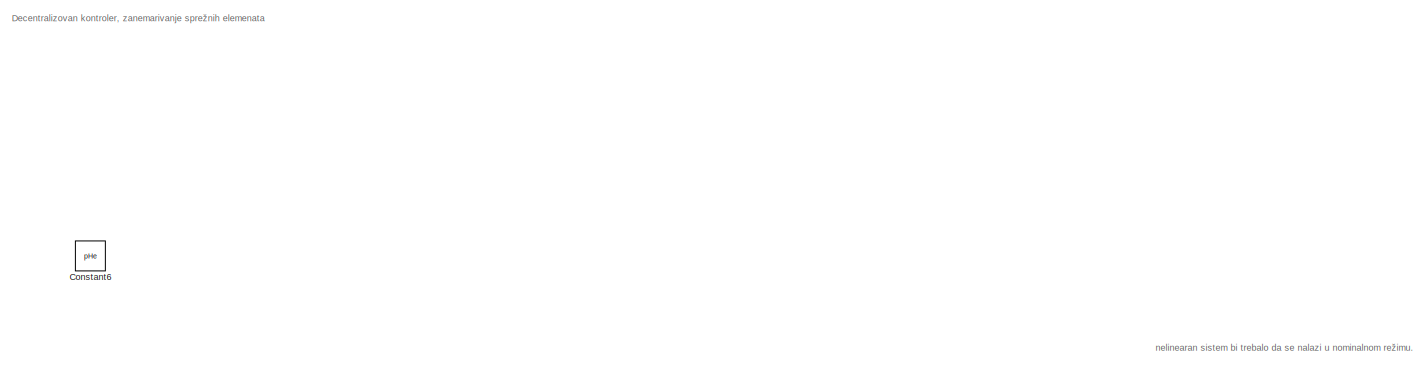
[diagram: root canvas - part 1/10, top left region]
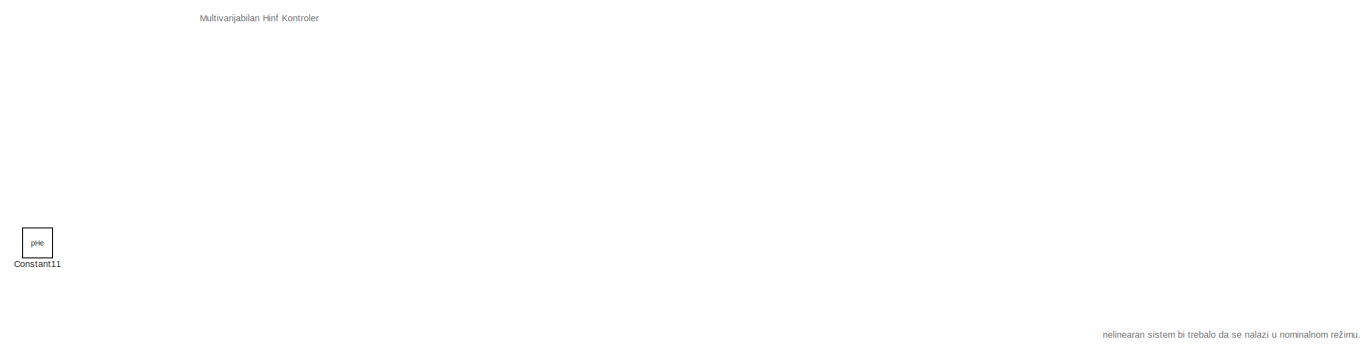
[diagram: root canvas - part 2/10, top right region]
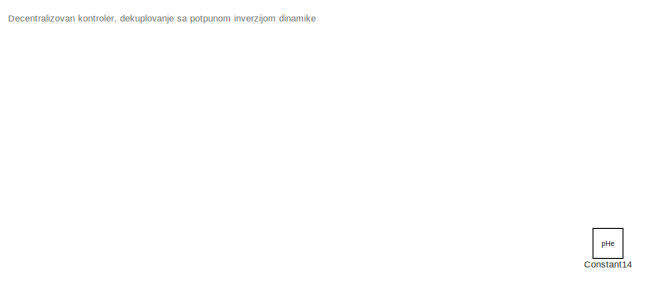
[diagram: root canvas - part 3/10, top right region]
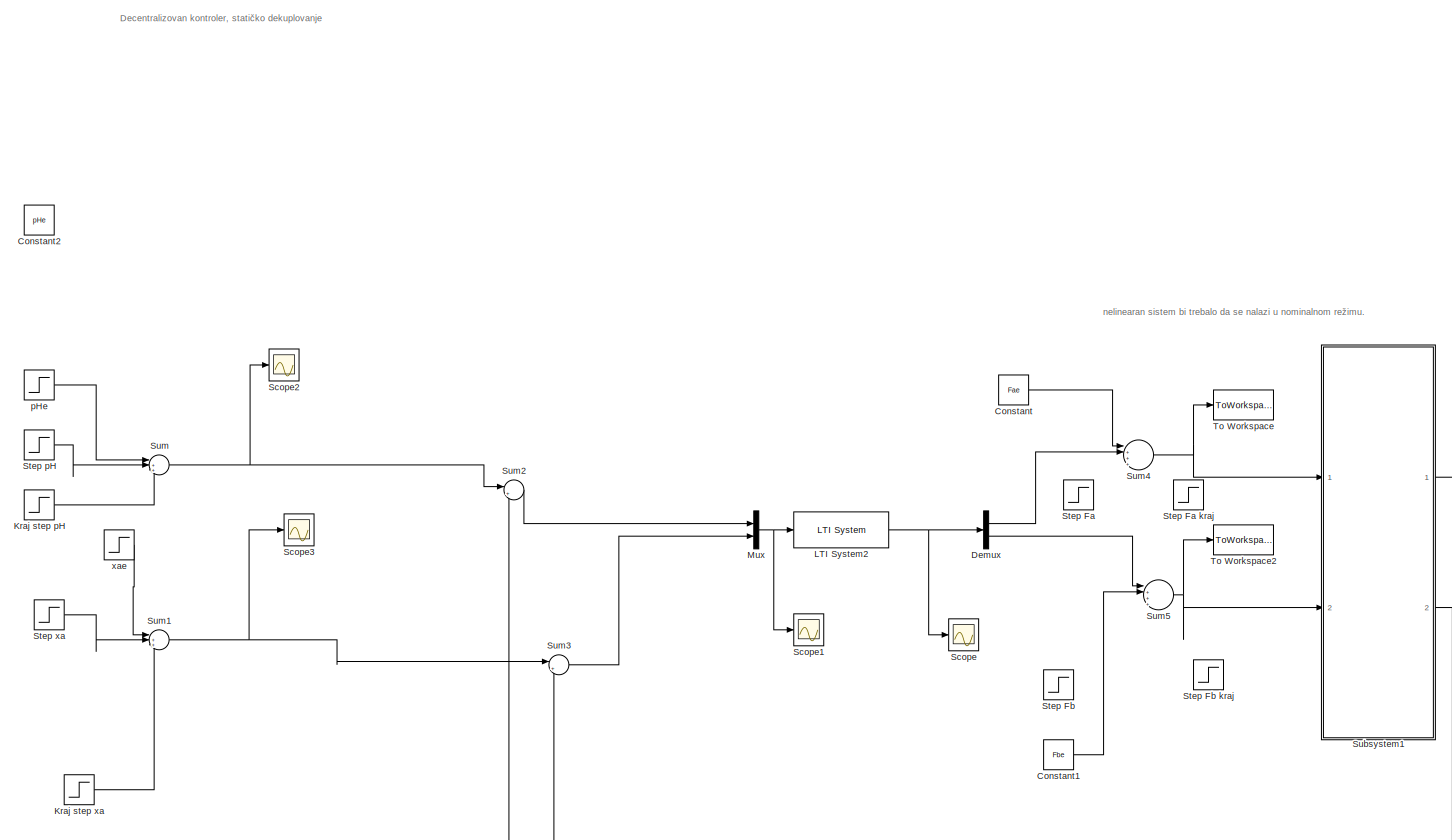
[diagram: root canvas - part 4/10, top left region]
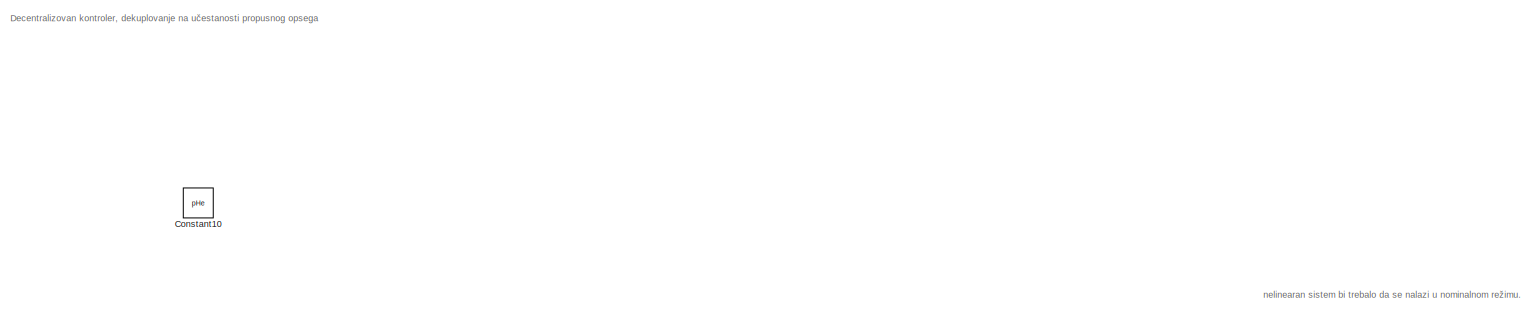
[diagram: root canvas - part 5/10, top center region]
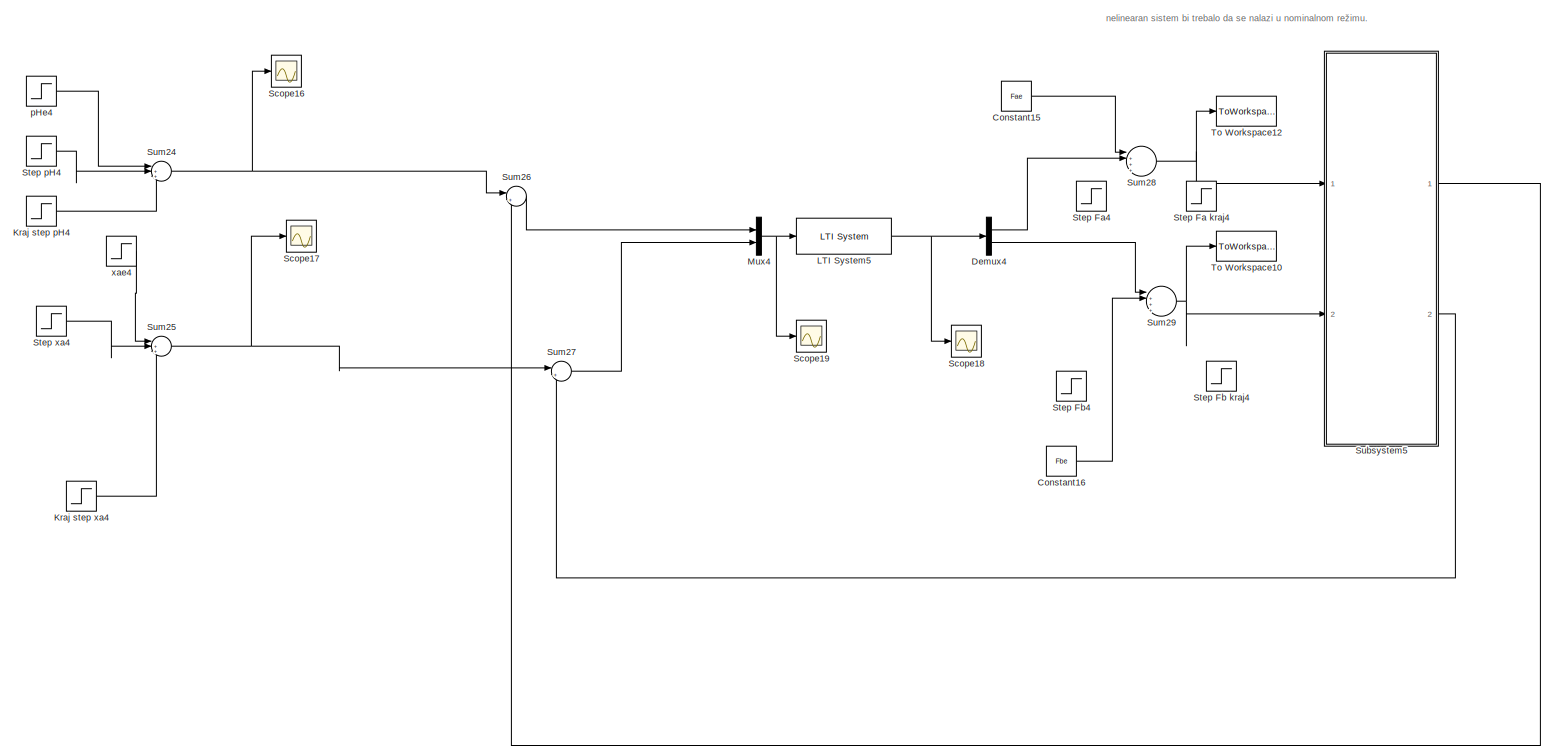
[diagram: root canvas - part 6/10, middle right region]
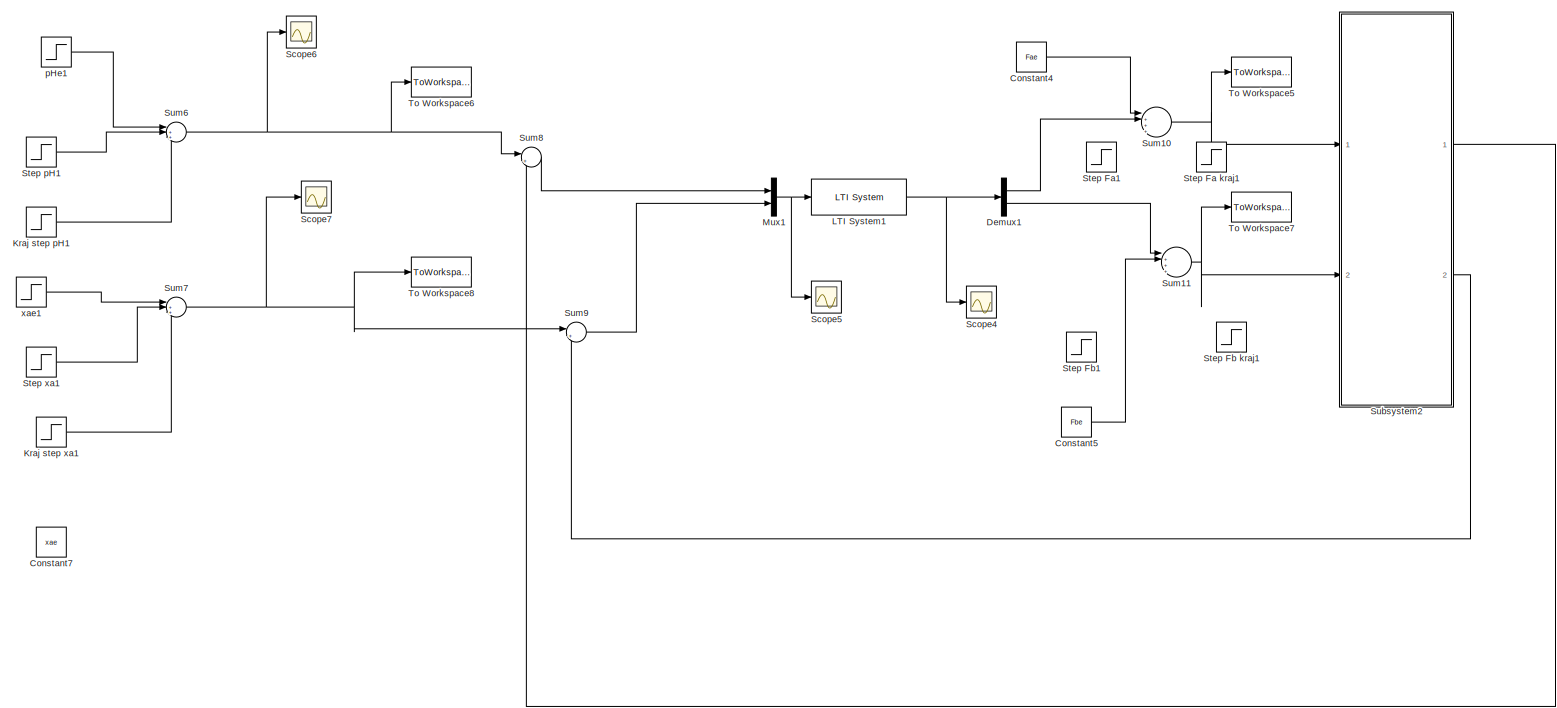
[diagram: root canvas - part 7/10, middle left region]
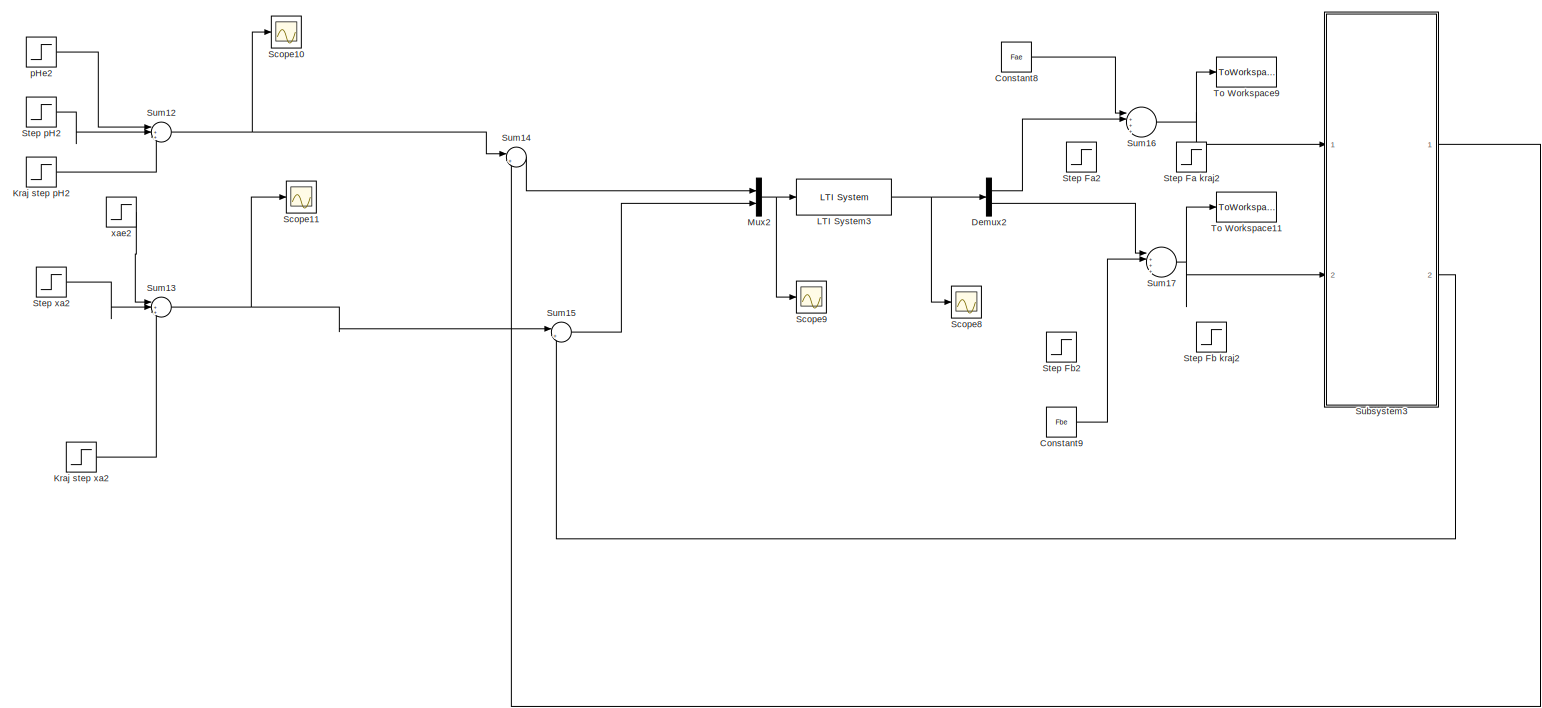
[diagram: root canvas - part 8/10, central region]
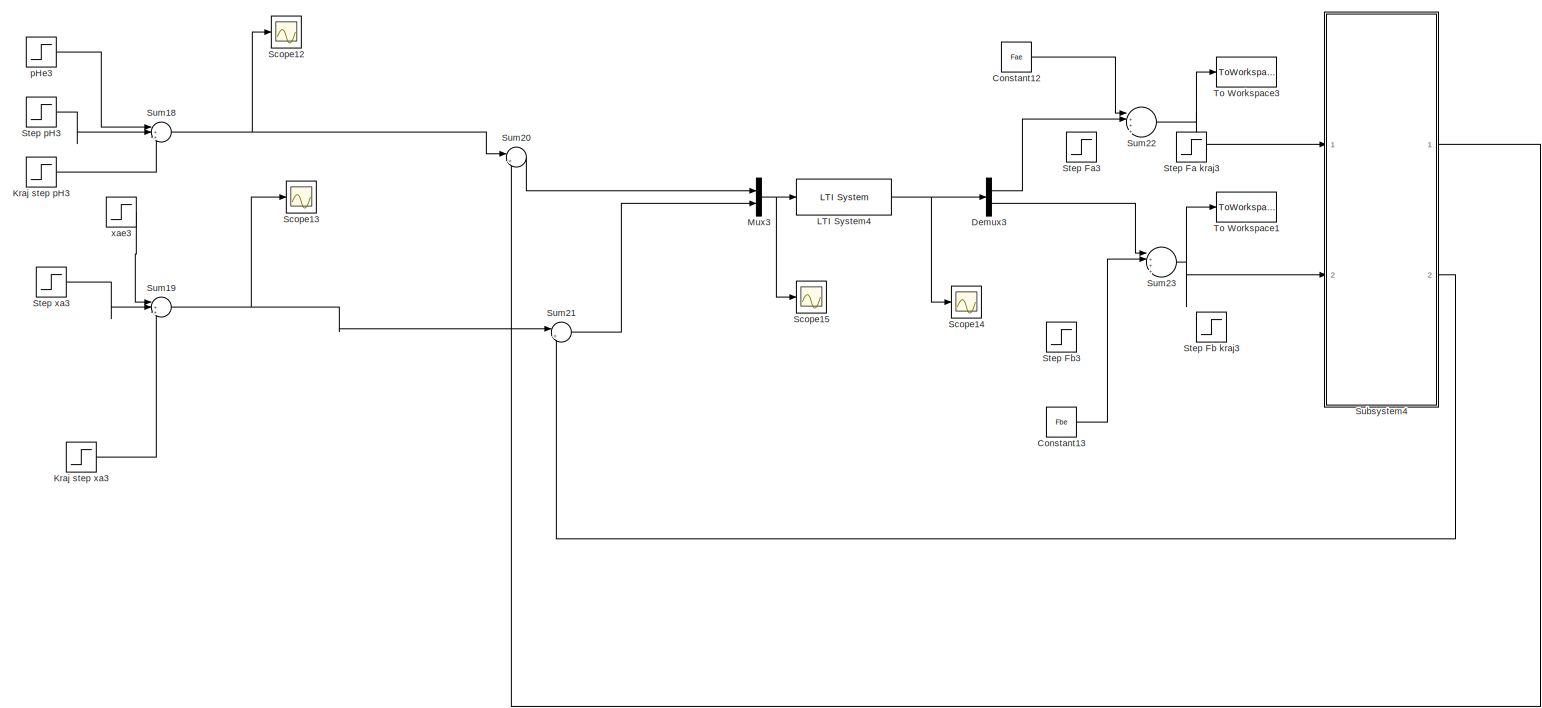
[diagram: root canvas - part 9/10, middle right region]
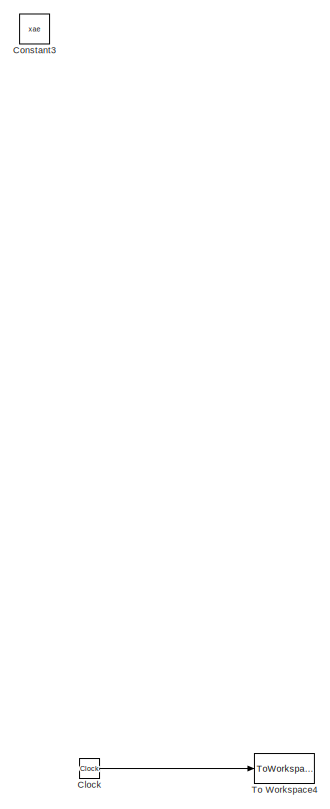
[diagram: root canvas - part 10/10, bottom left region]
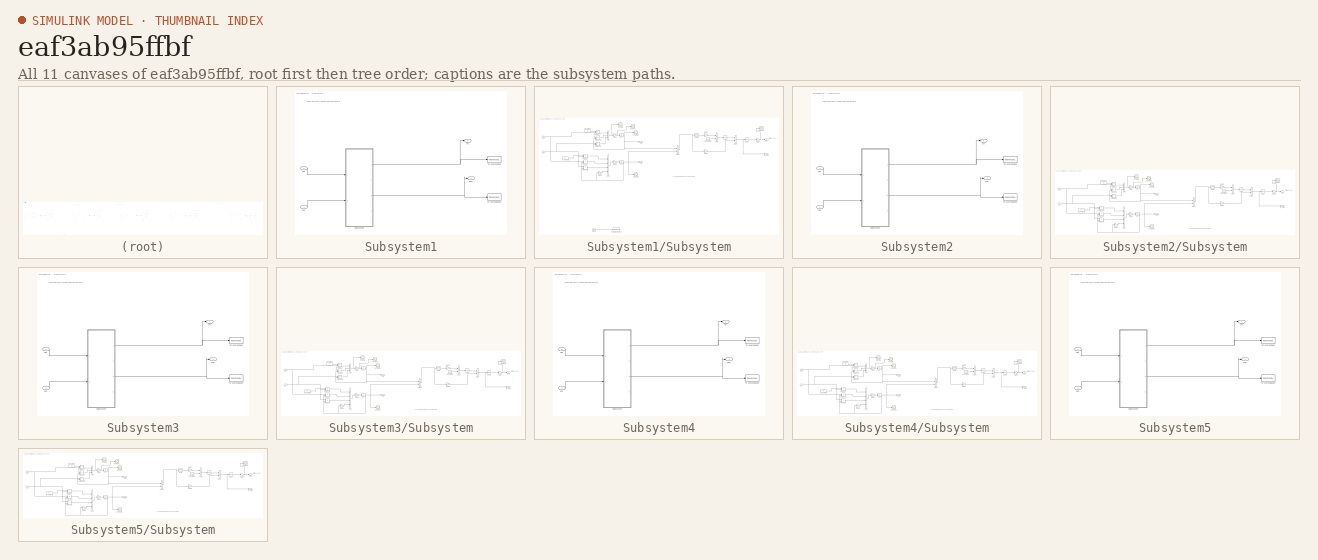
[diagram: thumbnail index - all 11 canvases of the model, root first then tree order]
MODEL slx_eaf3ab95ffbf
KIND model
CONFIG AbsTol = auto
CONFIG EnableMultiTasking = on
CONFIG FixedStep = 1
CONFIG MaxStep = auto
CONFIG MinStep = auto
CONFIG RelTol = 1e-3
CONFIG SampleTimeConstraint = Unconstrained
CONFIG Solver = ode4
CONFIG SolverName = ode4
CONFIG StartTime = 0.0
CONFIG StopTime = tfin
BLOCK [Clock] Clock
BLOCK [Constant] Constant
  Value = Fae
BLOCK [Constant] Constant1
  Value = Fbe
BLOCK [Constant] Constant10
  Value = pHe
BLOCK [Constant] Constant11
  Value = pHe
BLOCK [Constant] Constant12
  Value = Fae
BLOCK [Constant] Constant13
  Value = Fbe
BLOCK [Constant] Constant14
  Value = pHe
BLOCK [Constant] Constant15
  Value = Fae
BLOCK [Constant] Constant16
  Value = Fbe
BLOCK [Constant] Constant2
  Value = pHe
BLOCK [Constant] Constant3
  Value = xae
BLOCK [Constant] Constant4
  Value = Fae
BLOCK [Constant] Constant5
  Value = Fbe
BLOCK [Constant] Constant6
  Value = pHe
BLOCK [Constant] Constant7
  Value = xae
BLOCK [Constant] Constant8
  Value = Fae
BLOCK [Constant] Constant9
  Value = Fbe
BLOCK [Demux] Demux
  Outputs = 2
  Ports = [1, 2]
BLOCK [Demux] Demux1
  Outputs = 2
  Ports = [1, 2]
BLOCK [Demux] Demux2
  Outputs = 2
  Ports = [1, 2]
BLOCK [Demux] Demux3
  Outputs = 2
  Ports = [1, 2]
BLOCK [Demux] Demux4
  Outputs = 2
  Ports = [1, 2]
BLOCK [Step] Kraj step pH
  After = -pHstep
  SampleTime = 0
  Time = tu1_step2
BLOCK [Step] Kraj step pH1
  After = -pHstep
  SampleTime = 0
  Time = tu1_step2
BLOCK [Step] Kraj step pH2
  After = -pHstep
  SampleTime = 0
  Time = tu1_step2
BLOCK [Step] Kraj step pH3
  After = -pHstep
  SampleTime = 0
  Time = tu1_step2
BLOCK [Step] Kraj step pH4
  After = -pHstep
  SampleTime = 0
  Time = tu1_step2
BLOCK [Step] Kraj step xa
  After = -xastep
  SampleTime = 0
  Time = tu2_step2
BLOCK [Step] Kraj step xa1
  After = -xastep
  SampleTime = 0
  Time = tu2_step2
BLOCK [Step] Kraj step xa2
  After = -xastep
  SampleTime = 0
  Time = tu2_step2
BLOCK [Step] Kraj step xa3
  After = -xastep
  SampleTime = 0
  Time = tu2_step2
BLOCK [Step] Kraj step xa4
  After = -xastep
  SampleTime = 0
  Time = tu2_step2
BLOCK [Reference] LTI System1  REF=cstblocks/LTI System
  Ports = [1, 1]
  SourceBlock = cstblocks/LTI System
  SourceProductBaseCode = CT
  SourceType = LTI Block
BLOCK [Reference] LTI System2  REF=cstblocks/LTI System
  Ports = [1, 1]
  SourceBlock = cstblocks/LTI System
  SourceProductBaseCode = CT
  SourceType = LTI Block
BLOCK [Reference] LTI System3  REF=cstblocks/LTI System
  Ports = [1, 1]
  SourceBlock = cstblocks/LTI System
  SourceProductBaseCode = CT
  SourceType = LTI Block
BLOCK [Reference] LTI System4  REF=cstblocks/LTI System
  Ports = [1, 1]
  SourceBlock = cstblocks/LTI System
  SourceProductBaseCode = CT
  SourceType = LTI Block
BLOCK [Reference] LTI System5  REF=cstblocks/LTI System
  Ports = [1, 1]
  SourceBlock = cstblocks/LTI System
  SourceProductBaseCode = CT
  SourceType = LTI Block
BLOCK [Mux] Mux
  DisplayOption = bar
  Inputs = 2
  Ports = [2, 1]
BLOCK [Mux] Mux1
  DisplayOption = bar
  Inputs = 2
  Ports = [2, 1]
BLOCK [Mux] Mux2
  DisplayOption = bar
  Inputs = 2
  Ports = [2, 1]
BLOCK [Mux] Mux3
  DisplayOption = bar
  Inputs = 2
  Ports = [2, 1]
BLOCK [Mux] Mux4
  DisplayOption = bar
  Inputs = 2
  Ports = [2, 1]
BLOCK [Scope] Scope
  Floating = off
  NumInputPorts = 1
  Ports = [1]
  ScopeSpecificationString = Simulink.scopes.TimeScopeBlockCfg('CurrentConfiguration', extmgr.ConfigurationSet(extmgr.Configuration('Core','General UI',true),extmgr.Configuration('Core','Source UI',true),extmgr.Configuration('Sources','WiredSimulink',true,'DataLoggingVariableName','ScopeData1'),extmgr.Configuration('Visuals','Time Domain',true),extmgr.Configuration('Tools','Plot Navigation',true),extmgr.Configuration('Tools',...<+40ch>  <repeated x3 — deduplicated; at blocks: Scope, Scope12, Scope4>
BLOCK [Scope] Scope1
  Floating = off
  NumInputPorts = 1
  Ports = [1]
  ScopeSpecificationString = Simulink.scopes.TimeScopeBlockCfg('CurrentConfiguration', extmgr.ConfigurationSet(extmgr.Configuration('Core','General UI',true),extmgr.Configuration('Core','Source UI',true),extmgr.Configuration('Sources','WiredSimulink',true,'DataLoggingVariableName','ScopeData2'),extmgr.Configuration('Visuals','Time Domain',true,'SerializedDisplays',{struct('MinYLimReal','-0.000019','MaxYLimReal','0.000002','YL...<+1378ch>
BLOCK [Scope] Scope10
  Floating = off
  NumInputPorts = 1
  Ports = [1]
  ScopeSpecificationString = Simulink.scopes.TimeScopeBlockCfg('CurrentConfiguration', extmgr.ConfigurationSet(extmgr.Configuration('Core','General UI',true),extmgr.Configuration('Core','Source UI',true),extmgr.Configuration('Sources','WiredSimulink',true,'DataLoggingVariableName','ScopeData5'),extmgr.Configuration('Visuals','Time Domain',true),extmgr.Configuration('Tools','Plot Navigation',true),extmgr.Configuration('Tools',...<+40ch>
BLOCK [Scope] Scope11
  Floating = off
  NumInputPorts = 1
  Ports = [1]
  ScopeSpecificationString = Simulink.scopes.TimeScopeBlockCfg('CurrentConfiguration', extmgr.ConfigurationSet(extmgr.Configuration('Core','General UI',true),extmgr.Configuration('Core','Source UI',true),extmgr.Configuration('Sources','WiredSimulink',true,'DataLoggingVariableName','ScopeData6'),extmgr.Configuration('Visuals','Time Domain',true,'SerializedDisplays',{struct('MinYLimReal','0.000000331','MaxYLimReal','0.000000357...<+1394ch>
BLOCK [Scope] Scope12
  Floating = off
  NumInputPorts = 1
  Ports = [1]
BLOCK [Scope] Scope13
  Floating = off
  NumInputPorts = 1
  Ports = [1]
  ScopeSpecificationString = Simulink.scopes.TimeScopeBlockCfg('CurrentConfiguration', extmgr.ConfigurationSet(extmgr.Configuration('Core','General UI',true),extmgr.Configuration('Core','Source UI',true),extmgr.Configuration('Sources','WiredSimulink',true,'DataLoggingVariableName','ScopeData2'),extmgr.Configuration('Visuals','Time Domain',true),extmgr.Configuration('Tools','Plot Navigation',true),extmgr.Configuration('Tools',...<+40ch>
BLOCK [Scope] Scope14
  Floating = off
  NumInputPorts = 1
  Ports = [1]
  ScopeSpecificationString = Simulink.scopes.TimeScopeBlockCfg('CurrentConfiguration', extmgr.ConfigurationSet(extmgr.Configuration('Core','General UI',true),extmgr.Configuration('Core','Source UI',true),extmgr.Configuration('Sources','WiredSimulink',true,'DataLoggingVariableName','ScopeData3'),extmgr.Configuration('Visuals','Time Domain',true,'SerializedDisplays',{struct('MinYLimReal','-0.00225','MaxYLimReal','0.02001','YLab...<+1388ch>
BLOCK [Scope] Scope15
  Floating = off
  NumInputPorts = 1
  Ports = [1]
  ScopeSpecificationString = Simulink.scopes.TimeScopeBlockCfg('CurrentConfiguration', extmgr.ConfigurationSet(extmgr.Configuration('Core','General UI',true),extmgr.Configuration('Core','Source UI',true),extmgr.Configuration('Sources','WiredSimulink',true,'DataLoggingVariableName','ScopeData4'),extmgr.Configuration('Visuals','Time Domain',true,'SerializedDisplays',{struct('MinYLimReal','-0.01101','MaxYLimReal','0.01221','YLab...<+1372ch>
BLOCK [Scope] Scope16
  Floating = off
  NumInputPorts = 1
  Ports = [1]
  ScopeSpecificationString = Simulink.scopes.TimeScopeBlockCfg('CurrentConfiguration', extmgr.ConfigurationSet(extmgr.Configuration('Core','General UI',true),extmgr.Configuration('Core','Source UI',true),extmgr.Configuration('Sources','WiredSimulink',true,'DataLoggingVariableName','ScopeData5'),extmgr.Configuration('Visuals','Time Domain',true,'SerializedDisplays',{struct('MinYLimReal','6.41597','MaxYLimReal','8.41597','YLabe...<+1362ch>
BLOCK [Scope] Scope17
  Floating = off
  NumInputPorts = 1
  Ports = [1]
  ScopeSpecificationString = Simulink.scopes.TimeScopeBlockCfg('CurrentConfiguration', extmgr.ConfigurationSet(extmgr.Configuration('Core','General UI',true),extmgr.Configuration('Core','Source UI',true),extmgr.Configuration('Sources','WiredSimulink',true,'DataLoggingVariableName','ScopeData6'),extmgr.Configuration('Visuals','Time Domain',true,'SerializedDisplays',{struct('MinYLimReal','0.000000331','MaxYLimReal','0.000000355...<+1413ch>
BLOCK [Scope] Scope18
  Floating = off
  NumInputPorts = 1
  Ports = [1]
  ScopeSpecificationString = Simulink.scopes.TimeScopeBlockCfg('CurrentConfiguration', extmgr.ConfigurationSet(extmgr.Configuration('Core','General UI',true),extmgr.Configuration('Core','Source UI',true),extmgr.Configuration('Sources','WiredSimulink',true,'DataLoggingVariableName','ScopeData7'),extmgr.Configuration('Visuals','Time Domain',true,'SerializedDisplays',{struct('MinYLimReal','-29.42811','MaxYLimReal','3.26979','YLa...<+1392ch>
BLOCK [Scope] Scope19
  Floating = off
  NumInputPorts = 1
  Ports = [1]
  ScopeSpecificationString = Simulink.scopes.TimeScopeBlockCfg('CurrentConfiguration', extmgr.ConfigurationSet(extmgr.Configuration('Core','General UI',true),extmgr.Configuration('Core','Source UI',true),extmgr.Configuration('Sources','WiredSimulink',true,'DataLoggingVariableName','ScopeData8'),extmgr.Configuration('Visuals','Time Domain',true,'SerializedDisplays',{struct('MinYLimReal','-0.000082','MaxYLimReal','0.000009','YL...<+1380ch>
BLOCK [Scope] Scope2
  Floating = off
  NumInputPorts = 1
  Ports = [1]
  ScopeSpecificationString = Simulink.scopes.TimeScopeBlockCfg('CurrentConfiguration', extmgr.ConfigurationSet(extmgr.Configuration('Core','General UI',true),extmgr.Configuration('Core','Source UI',true),extmgr.Configuration('Sources','WiredSimulink',true,'DataLoggingVariableName','ScopeData3'),extmgr.Configuration('Visuals','Time Domain',true),extmgr.Configuration('Tools','Plot Navigation',true),extmgr.Configuration('Tools',...<+40ch>
BLOCK [Scope] Scope3
  Floating = off
  NumInputPorts = 1
  Ports = [1]
  ScopeSpecificationString = Simulink.scopes.TimeScopeBlockCfg('CurrentConfiguration', extmgr.ConfigurationSet(extmgr.Configuration('Core','General UI',true),extmgr.Configuration('Core','Source UI',true),extmgr.Configuration('Sources','WiredSimulink',true,'DataLoggingVariableName','ScopeData4'),extmgr.Configuration('Visuals','Time Domain',true),extmgr.Configuration('Tools','Plot Navigation',true),extmgr.Configuration('Tools',...<+40ch>
BLOCK [Scope] Scope4
  Floating = off
  NumInputPorts = 1
  Ports = [1]
BLOCK [Scope] Scope5
  Floating = off
  NumInputPorts = 1
  Ports = [1]
  ScopeSpecificationString = Simulink.scopes.TimeScopeBlockCfg('CurrentConfiguration', extmgr.ConfigurationSet(extmgr.Configuration('Core','General UI',true),extmgr.Configuration('Core','Source UI',true),extmgr.Configuration('Sources','WiredSimulink',true,'DataLoggingVariableName','ScopeData2'),extmgr.Configuration('Visuals','Time Domain',true),extmgr.Configuration('Tools','Plot Navigation',true),extmgr.Configuration('Tools',...<+40ch>
BLOCK [Scope] Scope6
  Floating = off
  NumInputPorts = 1
  Ports = [1]
  ScopeSpecificationString = Simulink.scopes.TimeScopeBlockCfg('CurrentConfiguration', extmgr.ConfigurationSet(extmgr.Configuration('Core','General UI',true),extmgr.Configuration('Core','Source UI',true),extmgr.Configuration('Sources','WiredSimulink',true,'DataLoggingVariableName','ScopeData3'),extmgr.Configuration('Visuals','Time Domain',true),extmgr.Configuration('Tools','Plot Navigation',true),extmgr.Configuration('Tools',...<+40ch>
BLOCK [Scope] Scope7
  Floating = off
  NumInputPorts = 1
  Ports = [1]
  ScopeSpecificationString = Simulink.scopes.TimeScopeBlockCfg('CurrentConfiguration', extmgr.ConfigurationSet(extmgr.Configuration('Core','General UI',true),extmgr.Configuration('Core','Source UI',true),extmgr.Configuration('Sources','WiredSimulink',true,'DataLoggingVariableName','ScopeData4'),extmgr.Configuration('Visuals','Time Domain',true),extmgr.Configuration('Tools','Plot Navigation',true),extmgr.Configuration('Tools',...<+40ch>
BLOCK [Scope] Scope8
  Floating = off
  NumInputPorts = 1
  Ports = [1]
  ScopeSpecificationString = Simulink.scopes.TimeScopeBlockCfg('CurrentConfiguration', extmgr.ConfigurationSet(extmgr.Configuration('Core','General UI',true),extmgr.Configuration('Core','Source UI',true),extmgr.Configuration('Sources','WiredSimulink',true,'DataLoggingVariableName','ScopeData7'),extmgr.Configuration('Visuals','Time Domain',true,'SerializedDisplays',{struct('MinYLimReal','-0.00156','MaxYLimReal','0.01404','YLab...<+1388ch>
BLOCK [Scope] Scope9
  Floating = off
  NumInputPorts = 1
  Ports = [1]
  ScopeSpecificationString = Simulink.scopes.TimeScopeBlockCfg('CurrentConfiguration', extmgr.ConfigurationSet(extmgr.Configuration('Core','General UI',true),extmgr.Configuration('Core','Source UI',true),extmgr.Configuration('Sources','WiredSimulink',true,'DataLoggingVariableName','ScopeData8'),extmgr.Configuration('Visuals','Time Domain',true,'SerializedDisplays',{struct('MinYLimReal','-0.000000024','MaxYLimReal','0.00000002...<+1423ch>
BLOCK [Step] Step Fa
  After = Fastep
  SampleTime = 0
  Time = tu1_step1
BLOCK [Step] Step Fa kraj
  After = -Fastep
  SampleTime = 0
  Time = tu1_step2
BLOCK [Step] Step Fa kraj1
  After = -Fastep
  SampleTime = 0
  Time = tu1_step2
BLOCK [Step] Step Fa kraj2
  After = -Fastep
  SampleTime = 0
  Time = tu1_step2
BLOCK [Step] Step Fa kraj3
  After = -Fastep
  SampleTime = 0
  Time = tu1_step2
BLOCK [Step] Step Fa kraj4
  After = -Fastep
  SampleTime = 0
  Time = tu1_step2
BLOCK [Step] Step Fa1
  After = Fastep
  SampleTime = 0
  Time = tu1_step1
BLOCK [Step] Step Fa2
  After = Fastep
  SampleTime = 0
  Time = tu1_step1
BLOCK [Step] Step Fa3
  After = Fastep
  SampleTime = 0
  Time = tu1_step1
BLOCK [Step] Step Fa4
  After = Fastep
  SampleTime = 0
  Time = tu1_step1
BLOCK [Step] Step Fb
  After = Fbstep
  SampleTime = 0
  Time = tu1_step1
BLOCK [Step] Step Fb kraj
  After = -Fbstep
  SampleTime = 0
  Time = tu1_step2
BLOCK [Step] Step Fb kraj1
  After = -Fbstep
  SampleTime = 0
  Time = tu1_step2
BLOCK [Step] Step Fb kraj2
  After = -Fbstep
  SampleTime = 0
  Time = tu1_step2
BLOCK [Step] Step Fb kraj3
  After = -Fbstep
  SampleTime = 0
  Time = tu1_step2
BLOCK [Step] Step Fb kraj4
  After = -Fbstep
  SampleTime = 0
  Time = tu1_step2
BLOCK [Step] Step Fb1
  After = Fbstep
  SampleTime = 0
  Time = tu1_step1
BLOCK [Step] Step Fb2
  After = Fbstep
  SampleTime = 0
  Time = tu1_step1
BLOCK [Step] Step Fb3
  After = Fbstep
  SampleTime = 0
  Time = tu1_step1
BLOCK [Step] Step Fb4
  After = Fbstep
  SampleTime = 0
  Time = tu1_step1
BLOCK [Step] Step pH
  After = pHstep
  SampleTime = 0
  Time = tu1_step1
BLOCK [Step] Step pH1
  After = pHstep
  SampleTime = 0
  Time = tu1_step1
BLOCK [Step] Step pH2
  After = pHstep
  SampleTime = 0
  Time = tu1_step1
BLOCK [Step] Step pH3
  After = pHstep
  SampleTime = 0
  Time = tu1_step1
BLOCK [Step] Step pH4
  After = pHstep
  SampleTime = 0
  Time = tu1_step1
BLOCK [Step] Step xa
  After = xastep
  SampleTime = 0
  Time = tu2_step1
BLOCK [Step] Step xa1
  After = xastep
  SampleTime = 0
  Time = tu2_step1
BLOCK [Step] Step xa2
  After = xastep
  SampleTime = 0
  Time = tu2_step1
BLOCK [Step] Step xa3
  After = xastep
  SampleTime = 0
  Time = tu2_step1
BLOCK [Step] Step xa4
  After = xastep
  SampleTime = 0
  Time = tu2_step1
BLOCK [SubSystem] Subsystem1
  Ports = [2, 2]
  RequestExecContextInheritance = off
BLOCK [Inport] Subsystem1/Fa1
BLOCK [Inport] Subsystem1/Fb1
  Port = 2
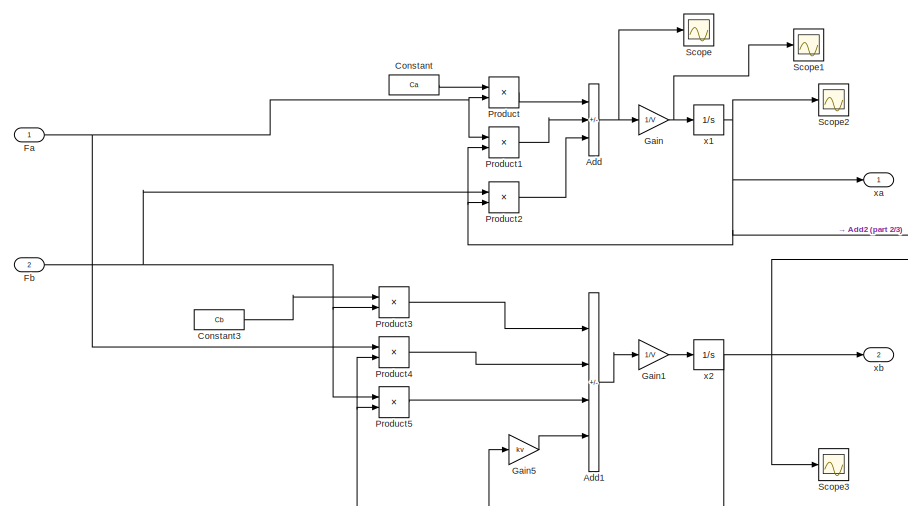
[diagram: Subsystem1/Subsystem - part 1/3, top left region]
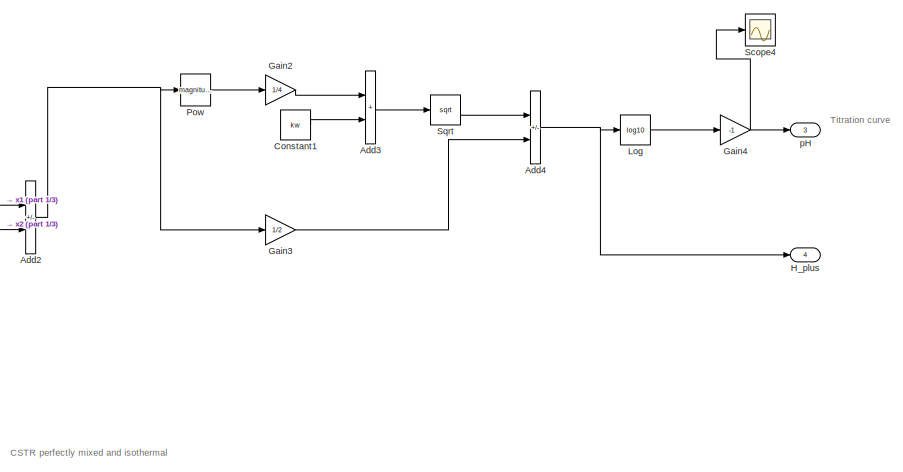
[diagram: Subsystem1/Subsystem - part 2/3, top right region]
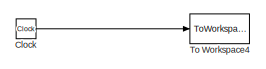
[diagram: Subsystem1/Subsystem - part 3/3, bottom left region]
BLOCK [SubSystem] Subsystem1/Subsystem
  Ports = [2, 4]
  RequestExecContextInheritance = off
BLOCK [Sum] Subsystem1/Subsystem/Add
  IconShape = rectangular
  Inputs = +--
  Ports = [3, 1]
BLOCK [Sum] Subsystem1/Subsystem/Add1
  IconShape = rectangular
  Inputs = +---
  Ports = [4, 1]
BLOCK [Sum] Subsystem1/Subsystem/Add2
  IconShape = rectangular
  Inputs = -+
  Ports = [2, 1]
BLOCK [Sum] Subsystem1/Subsystem/Add3
  IconShape = rectangular
  Ports = [2, 1]
BLOCK [Sum] Subsystem1/Subsystem/Add4
  IconShape = rectangular
  Inputs = +-
  Ports = [2, 1]
BLOCK [Clock] Subsystem1/Subsystem/Clock
BLOCK [Constant] Subsystem1/Subsystem/Constant
  Value = Ca
BLOCK [Constant] Subsystem1/Subsystem/Constant1
  Value = kw
BLOCK [Constant] Subsystem1/Subsystem/Constant3
  Value = Cb
BLOCK [Inport] Subsystem1/Subsystem/Fa
BLOCK [Inport] Subsystem1/Subsystem/Fb
  Port = 2
BLOCK [Gain] Subsystem1/Subsystem/Gain
  Gain = 1/V
BLOCK [Gain] Subsystem1/Subsystem/Gain1
  Gain = 1/V
BLOCK [Gain] Subsystem1/Subsystem/Gain2
  Gain = 1/4
BLOCK [Gain] Subsystem1/Subsystem/Gain3
  Gain = 1/2
BLOCK [Gain] Subsystem1/Subsystem/Gain4
  Gain = -1
BLOCK [Gain] Subsystem1/Subsystem/Gain5
  Gain = kv
BLOCK [Outport] Subsystem1/Subsystem/H_plus
  Port = 4
BLOCK [Math] Subsystem1/Subsystem/Log
  Operator = log10
  Ports = [1, 1]
BLOCK [Math] Subsystem1/Subsystem/Pow
  Operator = magnitude^2
  Ports = [1, 1]
  RndMeth = Zero
  SignedPower = on
BLOCK [Product] Subsystem1/Subsystem/Product
  Ports = [2, 1]
BLOCK [Product] Subsystem1/Subsystem/Product1
  Ports = [2, 1]
BLOCK [Product] Subsystem1/Subsystem/Product2
  Ports = [2, 1]
BLOCK [Product] Subsystem1/Subsystem/Product3
  Ports = [2, 1]
BLOCK [Product] Subsystem1/Subsystem/Product4
  Ports = [2, 1]
BLOCK [Product] Subsystem1/Subsystem/Product5
  Ports = [2, 1]
BLOCK [Scope] Subsystem1/Subsystem/Scope
  Floating = off
  NumInputPorts = 1
  Ports = [1]
  ScopeSpecificationString = Simulink.scopes.TimeScopeBlockCfg('CurrentConfiguration', extmgr.ConfigurationSet(extmgr.Configuration('Core','General UI',true),extmgr.Configuration('Core','Source UI',true),extmgr.Configuration('Sources','WiredSimulink',true),extmgr.Configuration('Visuals','Time Domain',true,'SerializedDisplays',{struct('MinYLimReal','-0.000000002','MaxYLimReal','0.000000019','YLabelReal','','MinYLimMag','0.0000...<+1355ch>  <repeated x5 — deduplicated; at blocks: Scope>
BLOCK [Scope] Subsystem1/Subsystem/Scope1
  Floating = off
  NumInputPorts = 1
  Ports = [1]
  ScopeSpecificationString = Simulink.scopes.TimeScopeBlockCfg('CurrentConfiguration', extmgr.ConfigurationSet(extmgr.Configuration('Core','General UI',true),extmgr.Configuration('Core','Source UI',true),extmgr.Configuration('Sources','WiredSimulink',true,'DataLoggingVariableName','ScopeData1'),extmgr.Configuration('Visuals','Time Domain',true,'SerializedDisplays',{struct('MinYLimReal','-0.00000000007','MaxYLimReal','0.000000...<+1411ch>  <repeated x3 — deduplicated; at blocks: Scope1>
BLOCK [Scope] Subsystem1/Subsystem/Scope2
  Floating = off
  NumInputPorts = 1
  Ports = [1]
  ScopeSpecificationString = Simulink.scopes.TimeScopeBlockCfg('CurrentConfiguration', extmgr.ConfigurationSet(extmgr.Configuration('Core','General UI',true),extmgr.Configuration('Core','Source UI',true),extmgr.Configuration('Sources','WiredSimulink',true,'DataLoggingVariableName','ScopeData2'),extmgr.Configuration('Visuals','Time Domain',true,'SerializedDisplays',{struct('MinYLimReal','-0.2575','MaxYLimReal','0.09265','YLabe...<+1376ch>  <repeated x4 — deduplicated; at blocks: Scope2>
BLOCK [Scope] Subsystem1/Subsystem/Scope3
  Floating = off
  NumInputPorts = 1
  Ports = [1]
  ScopeSpecificationString = Simulink.scopes.TimeScopeBlockCfg('CurrentConfiguration', extmgr.ConfigurationSet(extmgr.Configuration('Core','General UI',true),extmgr.Configuration('Core','Source UI',true),extmgr.Configuration('Sources','WiredSimulink',true,'DataLoggingVariableName','ScopeData3'),extmgr.Configuration('Visuals','Time Domain',true,'SerializedDisplays',{struct('MinYLimReal','-0.00000006','MaxYLimReal','0.00000056'...<+1385ch>  <repeated x5 — deduplicated; at blocks: Scope3>
BLOCK [Scope] Subsystem1/Subsystem/Scope4
  Floating = off
  NumInputPorts = 1
  Ports = [1]
  ScopeSpecificationString = Simulink.scopes.TimeScopeBlockCfg('CurrentConfiguration', extmgr.ConfigurationSet(extmgr.Configuration('Core','General UI',true),extmgr.Configuration('Core','Source UI',true),extmgr.Configuration('Sources','WiredSimulink',true,'DataLoggingVariableName','ScopeData4'),extmgr.Configuration('Visuals','Time Domain',true,'SerializedDisplays',{struct('MinYLimReal','6.52512','MaxYLimReal','8.15112','YLabe...<+1406ch>  <repeated x5 — deduplicated; at blocks: Scope4>
BLOCK [Sqrt] Subsystem1/Subsystem/Sqrt
BLOCK [ToWorkspace] Subsystem1/Subsystem/To Workspace4
  MaxDataPoints = inf
  Ports = [1]
  SampleTime = -1
  VariableName = t_out1
BLOCK [Outport] Subsystem1/Subsystem/pH
  Port = 3
BLOCK [Integrator] Subsystem1/Subsystem/x1
  InitialCondition = xa0
  Ports = [1, 1]
BLOCK [Integrator] Subsystem1/Subsystem/x2
  InitialCondition = xb0
  Ports = [1, 1]
BLOCK [Outport] Subsystem1/Subsystem/xa
BLOCK [Outport] Subsystem1/Subsystem/xb
  Port = 2
BLOCK [ToWorkspace] Subsystem1/To Workspace
  MaxDataPoints = inf
  Ports = [1]
  SampleTime = -1
  VariableName = xa_dec_stat_out
BLOCK [ToWorkspace] Subsystem1/To Workspace2
  MaxDataPoints = inf
  Ports = [1]
  SampleTime = -1
  VariableName = pH_dec_stat_out
BLOCK [Outport] Subsystem1/pH1
BLOCK [Outport] Subsystem1/xa
  Port = 2
BLOCK [SubSystem] Subsystem2
  Ports = [2, 2]
  RequestExecContextInheritance = off
BLOCK [Inport] Subsystem2/Fa1
BLOCK [Inport] Subsystem2/Fb1
  Port = 2
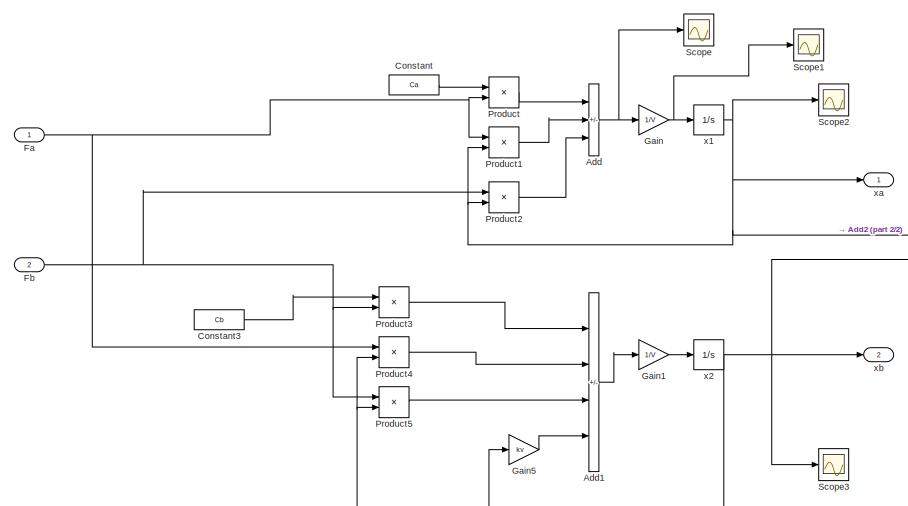
[diagram: Subsystem2/Subsystem - part 1/2, left side, full height]
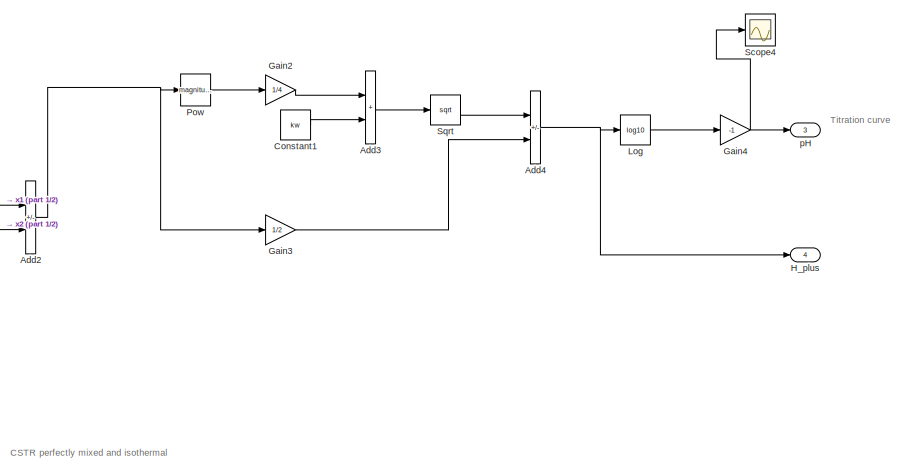
[diagram: Subsystem2/Subsystem - part 2/2, right side, full height]
BLOCK [SubSystem] Subsystem2/Subsystem
  Ports = [2, 4]
  RequestExecContextInheritance = off
BLOCK [Sum] Subsystem2/Subsystem/Add
  IconShape = rectangular
  Inputs = +--
  Ports = [3, 1]
BLOCK [Sum] Subsystem2/Subsystem/Add1
  IconShape = rectangular
  Inputs = +---
  Ports = [4, 1]
BLOCK [Sum] Subsystem2/Subsystem/Add2
  IconShape = rectangular
  Inputs = -+
  Ports = [2, 1]
BLOCK [Sum] Subsystem2/Subsystem/Add3
  IconShape = rectangular
  Ports = [2, 1]
BLOCK [Sum] Subsystem2/Subsystem/Add4
  IconShape = rectangular
  Inputs = +-
  Ports = [2, 1]
BLOCK [Constant] Subsystem2/Subsystem/Constant
  Value = Ca
BLOCK [Constant] Subsystem2/Subsystem/Constant1
  Value = kw
BLOCK [Constant] Subsystem2/Subsystem/Constant3
  Value = Cb
BLOCK [Inport] Subsystem2/Subsystem/Fa
BLOCK [Inport] Subsystem2/Subsystem/Fb
  Port = 2
BLOCK [Gain] Subsystem2/Subsystem/Gain
  Gain = 1/V
BLOCK [Gain] Subsystem2/Subsystem/Gain1
  Gain = 1/V
BLOCK [Gain] Subsystem2/Subsystem/Gain2
  Gain = 1/4
BLOCK [Gain] Subsystem2/Subsystem/Gain3
  Gain = 1/2
BLOCK [Gain] Subsystem2/Subsystem/Gain4
  Gain = -1
BLOCK [Gain] Subsystem2/Subsystem/Gain5
  Gain = kv
BLOCK [Outport] Subsystem2/Subsystem/H_plus
  Port = 4
BLOCK [Math] Subsystem2/Subsystem/Log
  Operator = log10
  Ports = [1, 1]
BLOCK [Math] Subsystem2/Subsystem/Pow
  Operator = magnitude^2
  Ports = [1, 1]
  RndMeth = Zero
  SignedPower = on
BLOCK [Product] Subsystem2/Subsystem/Product
  Ports = [2, 1]
BLOCK [Product] Subsystem2/Subsystem/Product1
  Ports = [2, 1]
BLOCK [Product] Subsystem2/Subsystem/Product2
  Ports = [2, 1]
BLOCK [Product] Subsystem2/Subsystem/Product3
  Ports = [2, 1]
BLOCK [Product] Subsystem2/Subsystem/Product4
  Ports = [2, 1]
BLOCK [Product] Subsystem2/Subsystem/Product5
  Ports = [2, 1]
BLOCK [Scope] Subsystem2/Subsystem/Scope
  Floating = off
  NumInputPorts = 1
  Ports = [1]
BLOCK [Scope] Subsystem2/Subsystem/Scope1
  Floating = off
  NumInputPorts = 1
  Ports = [1]
BLOCK [Scope] Subsystem2/Subsystem/Scope2
  Floating = off
  NumInputPorts = 1
  Ports = [1]
BLOCK [Scope] Subsystem2/Subsystem/Scope3
  Floating = off
  NumInputPorts = 1
  Ports = [1]
BLOCK [Scope] Subsystem2/Subsystem/Scope4
  Floating = off
  NumInputPorts = 1
  Ports = [1]
BLOCK [Sqrt] Subsystem2/Subsystem/Sqrt
BLOCK [Outport] Subsystem2/Subsystem/pH
  Port = 3
BLOCK [Integrator] Subsystem2/Subsystem/x1
  InitialCondition = xa0
  Ports = [1, 1]
BLOCK [Integrator] Subsystem2/Subsystem/x2
  InitialCondition = xb0
  Ports = [1, 1]
BLOCK [Outport] Subsystem2/Subsystem/xa
BLOCK [Outport] Subsystem2/Subsystem/xb
  Port = 2
BLOCK [ToWorkspace] Subsystem2/To Workspace
  MaxDataPoints = inf
  Ports = [1]
  SampleTime = -1
  VariableName = xa_dec_z_out
BLOCK [ToWorkspace] Subsystem2/To Workspace2
  MaxDataPoints = inf
  Ports = [1]
  SampleTime = -1
  VariableName = pH_dec_z_out
BLOCK [Outport] Subsystem2/pH1
BLOCK [Outport] Subsystem2/xa
  Port = 2
BLOCK [SubSystem] Subsystem3
  Ports = [2, 2]
  RequestExecContextInheritance = off
BLOCK [Inport] Subsystem3/Fa1
BLOCK [Inport] Subsystem3/Fb1
  Port = 2
BLOCK [SubSystem] Subsystem3/Subsystem
  Ports = [2, 4]
  RequestExecContextInheritance = off
BLOCK [Sum] Subsystem3/Subsystem/Add
  IconShape = rectangular
  Inputs = +--
  Ports = [3, 1]
BLOCK [Sum] Subsystem3/Subsystem/Add1
  IconShape = rectangular
  Inputs = +---
  Ports = [4, 1]
BLOCK [Sum] Subsystem3/Subsystem/Add2
  IconShape = rectangular
  Inputs = -+
  Ports = [2, 1]
BLOCK [Sum] Subsystem3/Subsystem/Add3
  IconShape = rectangular
  Ports = [2, 1]
BLOCK [Sum] Subsystem3/Subsystem/Add4
  IconShape = rectangular
  Inputs = +-
  Ports = [2, 1]
BLOCK [Constant] Subsystem3/Subsystem/Constant
  Value = Ca
BLOCK [Constant] Subsystem3/Subsystem/Constant1
  Value = kw
BLOCK [Constant] Subsystem3/Subsystem/Constant3
  Value = Cb
BLOCK [Inport] Subsystem3/Subsystem/Fa
BLOCK [Inport] Subsystem3/Subsystem/Fb
  Port = 2
BLOCK [Gain] Subsystem3/Subsystem/Gain
  Gain = 1/V
BLOCK [Gain] Subsystem3/Subsystem/Gain1
  Gain = 1/V
BLOCK [Gain] Subsystem3/Subsystem/Gain2
  Gain = 1/4
BLOCK [Gain] Subsystem3/Subsystem/Gain3
  Gain = 1/2
BLOCK [Gain] Subsystem3/Subsystem/Gain4
  Gain = -1
BLOCK [Gain] Subsystem3/Subsystem/Gain5
  Gain = kv
BLOCK [Outport] Subsystem3/Subsystem/H_plus
  Port = 4
BLOCK [Math] Subsystem3/Subsystem/Log
  Operator = log10
  Ports = [1, 1]
BLOCK [Math] Subsystem3/Subsystem/Pow
  Operator = magnitude^2
  Ports = [1, 1]
  RndMeth = Zero
  SignedPower = on
BLOCK [Product] Subsystem3/Subsystem/Product
  Ports = [2, 1]
BLOCK [Product] Subsystem3/Subsystem/Product1
  Ports = [2, 1]
BLOCK [Product] Subsystem3/Subsystem/Product2
  Ports = [2, 1]
BLOCK [Product] Subsystem3/Subsystem/Product3
  Ports = [2, 1]
BLOCK [Product] Subsystem3/Subsystem/Product4
  Ports = [2, 1]
BLOCK [Product] Subsystem3/Subsystem/Product5
  Ports = [2, 1]
BLOCK [Scope] Subsystem3/Subsystem/Scope
  Floating = off
  NumInputPorts = 1
  Ports = [1]
BLOCK [Scope] Subsystem3/Subsystem/Scope1
  Floating = off
  NumInputPorts = 1
  Ports = [1]
  ScopeSpecificationString = Simulink.scopes.TimeScopeBlockCfg('CurrentConfiguration', extmgr.ConfigurationSet(extmgr.Configuration('Core','General UI',true),extmgr.Configuration('Core','Source UI',true),extmgr.Configuration('Sources','WiredSimulink',true,'DataLoggingVariableName','ScopeData1'),extmgr.Configuration('Visuals','Time Domain',true,'SerializedDisplays',{struct('MinYLimReal','0.000000000000000000000000045','MaxYLim...<+1537ch>
BLOCK [Scope] Subsystem3/Subsystem/Scope2
  Floating = off
  NumInputPorts = 1
  Ports = [1]
BLOCK [Scope] Subsystem3/Subsystem/Scope3
  Floating = off
  NumInputPorts = 1
  Ports = [1]
BLOCK [Scope] Subsystem3/Subsystem/Scope4
  Floating = off
  NumInputPorts = 1
  Ports = [1]
BLOCK [Sqrt] Subsystem3/Subsystem/Sqrt
BLOCK [Outport] Subsystem3/Subsystem/pH
  Port = 3
BLOCK [Integrator] Subsystem3/Subsystem/x1
  InitialCondition = xa0
  Ports = [1, 1]
BLOCK [Integrator] Subsystem3/Subsystem/x2
  InitialCondition = xb0
  Ports = [1, 1]
BLOCK [Outport] Subsystem3/Subsystem/xa
BLOCK [Outport] Subsystem3/Subsystem/xb
  Port = 2
BLOCK [ToWorkspace] Subsystem3/To Workspace
  MaxDataPoints = inf
  Ports = [1]
  SampleTime = -1
  VariableName = xa_dec_w0_out
BLOCK [ToWorkspace] Subsystem3/To Workspace2
  MaxDataPoints = inf
  Ports = [1]
  SampleTime = -1
  VariableName = pH_dec_w0_out
BLOCK [Outport] Subsystem3/pH1
BLOCK [Outport] Subsystem3/xa
  Port = 2
BLOCK [SubSystem] Subsystem4
  Ports = [2, 2]
  RequestExecContextInheritance = off
BLOCK [Inport] Subsystem4/Fa1
BLOCK [Inport] Subsystem4/Fb1
  Port = 2
BLOCK [SubSystem] Subsystem4/Subsystem
  Ports = [2, 4]
  RequestExecContextInheritance = off
BLOCK [Sum] Subsystem4/Subsystem/Add
  IconShape = rectangular
  Inputs = +--
  Ports = [3, 1]
BLOCK [Sum] Subsystem4/Subsystem/Add1
  IconShape = rectangular
  Inputs = +---
  Ports = [4, 1]
BLOCK [Sum] Subsystem4/Subsystem/Add2
  IconShape = rectangular
  Inputs = -+
  Ports = [2, 1]
BLOCK [Sum] Subsystem4/Subsystem/Add3
  IconShape = rectangular
  Ports = [2, 1]
BLOCK [Sum] Subsystem4/Subsystem/Add4
  IconShape = rectangular
  Inputs = +-
  Ports = [2, 1]
BLOCK [Constant] Subsystem4/Subsystem/Constant
  Value = Ca
BLOCK [Constant] Subsystem4/Subsystem/Constant1
  Value = kw
BLOCK [Constant] Subsystem4/Subsystem/Constant3
  Value = Cb
BLOCK [Inport] Subsystem4/Subsystem/Fa
BLOCK [Inport] Subsystem4/Subsystem/Fb
  Port = 2
BLOCK [Gain] Subsystem4/Subsystem/Gain
  Gain = 1/V
BLOCK [Gain] Subsystem4/Subsystem/Gain1
  Gain = 1/V
BLOCK [Gain] Subsystem4/Subsystem/Gain2
  Gain = 1/4
BLOCK [Gain] Subsystem4/Subsystem/Gain3
  Gain = 1/2
BLOCK [Gain] Subsystem4/Subsystem/Gain4
  Gain = -1
BLOCK [Gain] Subsystem4/Subsystem/Gain5
  Gain = kv
BLOCK [Outport] Subsystem4/Subsystem/H_plus
  Port = 4
BLOCK [Math] Subsystem4/Subsystem/Log
  Operator = log10
  Ports = [1, 1]
BLOCK [Math] Subsystem4/Subsystem/Pow
  Operator = magnitude^2
  Ports = [1, 1]
  RndMeth = Zero
  SignedPower = on
BLOCK [Product] Subsystem4/Subsystem/Product
  Ports = [2, 1]
BLOCK [Product] Subsystem4/Subsystem/Product1
  Ports = [2, 1]
BLOCK [Product] Subsystem4/Subsystem/Product2
  Ports = [2, 1]
BLOCK [Product] Subsystem4/Subsystem/Product3
  Ports = [2, 1]
BLOCK [Product] Subsystem4/Subsystem/Product4
  Ports = [2, 1]
BLOCK [Product] Subsystem4/Subsystem/Product5
  Ports = [2, 1]
BLOCK [Scope] Subsystem4/Subsystem/Scope
  Floating = off
  NumInputPorts = 1
  Ports = [1]
BLOCK [Scope] Subsystem4/Subsystem/Scope1
  Floating = off
  NumInputPorts = 1
  Ports = [1]
BLOCK [Scope] Subsystem4/Subsystem/Scope2
  Floating = off
  NumInputPorts = 1
  Ports = [1]
BLOCK [Scope] Subsystem4/Subsystem/Scope3
  Floating = off
  NumInputPorts = 1
  Ports = [1]
BLOCK [Scope] Subsystem4/Subsystem/Scope4
  Floating = off
  NumInputPorts = 1
  Ports = [1]
BLOCK [Sqrt] Subsystem4/Subsystem/Sqrt
BLOCK [Outport] Subsystem4/Subsystem/pH
  Port = 3
BLOCK [Integrator] Subsystem4/Subsystem/x1
  InitialCondition = xa0
  Ports = [1, 1]
BLOCK [Integrator] Subsystem4/Subsystem/x2
  InitialCondition = xb0
  Ports = [1, 1]
BLOCK [Outport] Subsystem4/Subsystem/xa
BLOCK [Outport] Subsystem4/Subsystem/xb
  Port = 2
BLOCK [ToWorkspace] Subsystem4/To Workspace
  MaxDataPoints = inf
  Ports = [1]
  SampleTime = -1
  VariableName = xa_hinf_out
BLOCK [ToWorkspace] Subsystem4/To Workspace2
  MaxDataPoints = inf
  Ports = [1]
  SampleTime = -1
  VariableName = pH_hinf_out
BLOCK [Outport] Subsystem4/pH1
BLOCK [Outport] Subsystem4/xa
  Port = 2
BLOCK [SubSystem] Subsystem5
  Ports = [2, 2]
  RequestExecContextInheritance = off
BLOCK [Inport] Subsystem5/Fa1
BLOCK [Inport] Subsystem5/Fb1
  Port = 2
BLOCK [SubSystem] Subsystem5/Subsystem
  Ports = [2, 4]
  RequestExecContextInheritance = off
BLOCK [Sum] Subsystem5/Subsystem/Add
  IconShape = rectangular
  Inputs = +--
  Ports = [3, 1]
BLOCK [Sum] Subsystem5/Subsystem/Add1
  IconShape = rectangular
  Inputs = +---
  Ports = [4, 1]
BLOCK [Sum] Subsystem5/Subsystem/Add2
  IconShape = rectangular
  Inputs = -+
  Ports = [2, 1]
BLOCK [Sum] Subsystem5/Subsystem/Add3
  IconShape = rectangular
  Ports = [2, 1]
BLOCK [Sum] Subsystem5/Subsystem/Add4
  IconShape = rectangular
  Inputs = +-
  Ports = [2, 1]
BLOCK [Constant] Subsystem5/Subsystem/Constant
  Value = Ca
BLOCK [Constant] Subsystem5/Subsystem/Constant1
  Value = kw
BLOCK [Constant] Subsystem5/Subsystem/Constant3
  Value = Cb
BLOCK [Inport] Subsystem5/Subsystem/Fa
BLOCK [Inport] Subsystem5/Subsystem/Fb
  Port = 2
BLOCK [Gain] Subsystem5/Subsystem/Gain
  Gain = 1/V
BLOCK [Gain] Subsystem5/Subsystem/Gain1
  Gain = 1/V
BLOCK [Gain] Subsystem5/Subsystem/Gain2
  Gain = 1/4
BLOCK [Gain] Subsystem5/Subsystem/Gain3
  Gain = 1/2
BLOCK [Gain] Subsystem5/Subsystem/Gain4
  Gain = -1
BLOCK [Gain] Subsystem5/Subsystem/Gain5
  Gain = kv
BLOCK [Outport] Subsystem5/Subsystem/H_plus
  Port = 4
BLOCK [Math] Subsystem5/Subsystem/Log
  Operator = log10
  Ports = [1, 1]
BLOCK [Math] Subsystem5/Subsystem/Pow
  Operator = magnitude^2
  Ports = [1, 1]
  RndMeth = Zero
  SignedPower = on
BLOCK [Product] Subsystem5/Subsystem/Product
  Ports = [2, 1]
BLOCK [Product] Subsystem5/Subsystem/Product1
  Ports = [2, 1]
BLOCK [Product] Subsystem5/Subsystem/Product2
  Ports = [2, 1]
BLOCK [Product] Subsystem5/Subsystem/Product3
  Ports = [2, 1]
BLOCK [Product] Subsystem5/Subsystem/Product4
  Ports = [2, 1]
BLOCK [Product] Subsystem5/Subsystem/Product5
  Ports = [2, 1]
BLOCK [Scope] Subsystem5/Subsystem/Scope
  Floating = off
  NumInputPorts = 1
  Ports = [1]
BLOCK [Scope] Subsystem5/Subsystem/Scope1
  Floating = off
  NumInputPorts = 1
  Ports = [1]
  ScopeSpecificationString = Simulink.scopes.TimeScopeBlockCfg('CurrentConfiguration', extmgr.ConfigurationSet(extmgr.Configuration('Core','General UI',true),extmgr.Configuration('Core','Source UI',true),extmgr.Configuration('Sources','WiredSimulink',true,'DataLoggingVariableName','ScopeData1'),extmgr.Configuration('Visuals','Time Domain',true,'SerializedDisplays',{struct('MinYLimReal','-0.00000004','MaxYLimReal','0.00000033'...<+1387ch>
BLOCK [Scope] Subsystem5/Subsystem/Scope2
  Floating = off
  NumInputPorts = 1
  Ports = [1]
  ScopeSpecificationString = Simulink.scopes.TimeScopeBlockCfg('CurrentConfiguration', extmgr.ConfigurationSet(extmgr.Configuration('Core','General UI',true),extmgr.Configuration('Core','Source UI',true),extmgr.Configuration('Sources','WiredSimulink',true,'DataLoggingVariableName','ScopeData2'),extmgr.Configuration('Visuals','Time Domain',true,'SerializedDisplays',{struct('MinYLimReal','0.00000023','MaxYLimReal','0.00000043',...<+1402ch>
BLOCK [Scope] Subsystem5/Subsystem/Scope3
  Floating = off
  NumInputPorts = 1
  Ports = [1]
BLOCK [Scope] Subsystem5/Subsystem/Scope4
  Floating = off
  NumInputPorts = 1
  Ports = [1]
BLOCK [Sqrt] Subsystem5/Subsystem/Sqrt
BLOCK [Outport] Subsystem5/Subsystem/pH
  Port = 3
BLOCK [Integrator] Subsystem5/Subsystem/x1
  InitialCondition = xa0
  Ports = [1, 1]
BLOCK [Integrator] Subsystem5/Subsystem/x2
  InitialCondition = xb0
  Ports = [1, 1]
BLOCK [Outport] Subsystem5/Subsystem/xa
BLOCK [Outport] Subsystem5/Subsystem/xb
  Port = 2
BLOCK [ToWorkspace] Subsystem5/To Workspace
  MaxDataPoints = inf
  Ports = [1]
  SampleTime = -1
  VariableName = xa_inv_out
BLOCK [ToWorkspace] Subsystem5/To Workspace2
  MaxDataPoints = inf
  Ports = [1]
  SampleTime = -1
  VariableName = pH_inv_out
BLOCK [Outport] Subsystem5/pH1
BLOCK [Outport] Subsystem5/xa
  Port = 2
BLOCK [Sum] Sum
  Inputs = |+++
  Ports = [3, 1]
BLOCK [Sum] Sum1
  Inputs = |+++
  Ports = [3, 1]
BLOCK [Sum] Sum10
  Inputs = |++++
  NameLocation = top
  Ports = [4, 1]
BLOCK [Sum] Sum11
  Inputs = |++++
  Ports = [4, 1]
BLOCK [Sum] Sum12
  Inputs = |+++
  Ports = [3, 1]
BLOCK [Sum] Sum13
  Inputs = |+++
  Ports = [3, 1]
BLOCK [Sum] Sum14
  Inputs = |+-
  Ports = [2, 1]
BLOCK [Sum] Sum15
  Inputs = |+-
  Ports = [2, 1]
BLOCK [Sum] Sum16
  Inputs = |++++
  NameLocation = top
  Ports = [4, 1]
BLOCK [Sum] Sum17
  Inputs = |++++
  Ports = [4, 1]
BLOCK [Sum] Sum18
  Inputs = |+++
  Ports = [3, 1]
BLOCK [Sum] Sum19
  Inputs = |+++
  Ports = [3, 1]
BLOCK [Sum] Sum2
  Inputs = |+-
  Ports = [2, 1]
BLOCK [Sum] Sum20
  Inputs = |+-
  Ports = [2, 1]
BLOCK [Sum] Sum21
  Inputs = |+-
  Ports = [2, 1]
BLOCK [Sum] Sum22
  Inputs = |++++
  NameLocation = top
  Ports = [4, 1]
BLOCK [Sum] Sum23
  Inputs = |++++
  Ports = [4, 1]
BLOCK [Sum] Sum24
  Inputs = |+++
  Ports = [3, 1]
BLOCK [Sum] Sum25
  Inputs = |+++
  Ports = [3, 1]
BLOCK [Sum] Sum26
  Inputs = |+-
  Ports = [2, 1]
BLOCK [Sum] Sum27
  Inputs = |+-
  Ports = [2, 1]
BLOCK [Sum] Sum28
  Inputs = |++++
  NameLocation = top
  Ports = [4, 1]
BLOCK [Sum] Sum29
  Inputs = |++++
  Ports = [4, 1]
BLOCK [Sum] Sum3
  Inputs = |+-
  Ports = [2, 1]
BLOCK [Sum] Sum4
  Inputs = |++++
  NameLocation = top
  Ports = [4, 1]
BLOCK [Sum] Sum5
  Inputs = |++++
  Ports = [4, 1]
BLOCK [Sum] Sum6
  Inputs = |+++
  Ports = [3, 1]
BLOCK [Sum] Sum7
  Inputs = |+++
  Ports = [3, 1]
BLOCK [Sum] Sum8
  Inputs = |+-
  Ports = [2, 1]
BLOCK [Sum] Sum9
  Inputs = |+-
  Ports = [2, 1]
BLOCK [ToWorkspace] To Workspace
  MaxDataPoints = inf
  Ports = [1]
  SampleTime = -1
  VariableName = Fa_dec_stat_out
BLOCK [ToWorkspace] To Workspace1
  MaxDataPoints = inf
  Ports = [1]
  SampleTime = -1
  VariableName = Fb_hinf_out
BLOCK [ToWorkspace] To Workspace10
  MaxDataPoints = inf
  Ports = [1]
  SampleTime = -1
  VariableName = Fb_inv_out
BLOCK [ToWorkspace] To Workspace11
  MaxDataPoints = inf
  Ports = [1]
  SampleTime = -1
  VariableName = Fb_dec_w0_out
BLOCK [ToWorkspace] To Workspace12
  MaxDataPoints = inf
  Ports = [1]
  SampleTime = -1
  VariableName = Fa_inv_out
BLOCK [ToWorkspace] To Workspace2
  MaxDataPoints = inf
  Ports = [1]
  SampleTime = -1
  VariableName = Fb_dec_stat_out
BLOCK [ToWorkspace] To Workspace3
  MaxDataPoints = inf
  Ports = [1]
  SampleTime = -1
  VariableName = Fa_hinf_out
BLOCK [ToWorkspace] To Workspace4
  MaxDataPoints = inf
  Ports = [1]
  SampleTime = -1
  VariableName = t_out
BLOCK [ToWorkspace] To Workspace5
  MaxDataPoints = inf
  Ports = [1]
  SampleTime = -1
  VariableName = Fa_dec_z_out
BLOCK [ToWorkspace] To Workspace6
  MaxDataPoints = inf
  Ports = [1]
  SampleTime = -1
  VariableName = pH_ref_out
BLOCK [ToWorkspace] To Workspace7
  MaxDataPoints = inf
  Ports = [1]
  SampleTime = -1
  VariableName = Fb_dec_z_out
BLOCK [ToWorkspace] To Workspace8
  MaxDataPoints = inf
  Ports = [1]
  SampleTime = -1
  VariableName = xa_ref_out
BLOCK [ToWorkspace] To Workspace9
  MaxDataPoints = inf
  Ports = [1]
  SampleTime = -1
  VariableName = Fa_dec_w0_out
BLOCK [Step] pHe
  After = pHe
  SampleTime = 0
  Time = 0
BLOCK [Step] pHe1
  After = pHe
  SampleTime = 0
  Time = 0
BLOCK [Step] pHe2
  After = pHe
  SampleTime = 0
  Time = 0
BLOCK [Step] pHe3
  After = pHe
  SampleTime = 0
  Time = 0
BLOCK [Step] pHe4
  After = pHe
  SampleTime = 0
  Time = 0
BLOCK [Step] xae
  After = xae
  SampleTime = 0
  Time = 0
BLOCK [Step] xae1
  After = xae
  SampleTime = 0
  Time = 0
BLOCK [Step] xae2
  After = xae
  SampleTime = 0
  Time = 0
BLOCK [Step] xae3
  After = xae
  SampleTime = 0
  Time = 0
BLOCK [Step] xae4
  After = xae
  SampleTime = 0
  Time = 0
ANNOTATION (root): Decentralizovan kontroler, dekuplovanje na učestanosti propusnog opsega
ANNOTATION (root): Decentralizovan kontroler, statičko dekuplovanje
ANNOTATION (root): Decentralizovan kontroler, zanemarivanje sprežnih elemenata
ANNOTATION (root): Decentralizovan kontroler, dekuplovanje sa potpunom inverzijom dinamike
ANNOTATION (root): Multivarijabilan Hinf Kontroler
ANNOTATION (root): nelinearan sistem bi trebalo da se nalazi u nominalnom režimu.
ANNOTATION Subsystem1: CSTR perfectly mixed and isothermal
ANNOTATION Subsystem1/Subsystem: CSTR perfectly mixed and isothermal
ANNOTATION Subsystem1/Subsystem: Titration curve
ANNOTATION Subsystem2: CSTR perfectly mixed and isothermal
ANNOTATION Subsystem2/Subsystem: CSTR perfectly mixed and isothermal
ANNOTATION Subsystem2/Subsystem: Titration curve
ANNOTATION Subsystem3: CSTR perfectly mixed and isothermal
ANNOTATION Subsystem3/Subsystem: CSTR perfectly mixed and isothermal
ANNOTATION Subsystem3/Subsystem: Titration curve
ANNOTATION Subsystem4: CSTR perfectly mixed and isothermal
ANNOTATION Subsystem4/Subsystem: CSTR perfectly mixed and isothermal
ANNOTATION Subsystem4/Subsystem: Titration curve
ANNOTATION Subsystem5: CSTR perfectly mixed and isothermal
ANNOTATION Subsystem5/Subsystem: CSTR perfectly mixed and isothermal
ANNOTATION Subsystem5/Subsystem: Titration curve
LINE Clock:1 -> To Workspace4:1
LINE Constant12:1 -> Sum22:1
LINE Constant13:1 -> Sum23:2
LINE Constant15:1 -> Sum28:1
LINE Constant16:1 -> Sum29:2
LINE Constant1:1 -> Sum5:2
LINE Constant4:1 -> Sum10:1
LINE Constant5:1 -> Sum11:2
LINE Constant8:1 -> Sum16:1
LINE Constant9:1 -> Sum17:2
LINE Constant:1 -> Sum4:1
LINE Demux1:1 -> Sum10:2
LINE Demux1:2 -> Sum11:1
LINE Demux2:1 -> Sum16:2
LINE Demux2:2 -> Sum17:1
LINE Demux3:1 -> Sum22:2
LINE Demux3:2 -> Sum23:1
LINE Demux4:1 -> Sum28:2
LINE Demux4:2 -> Sum29:1
LINE Demux:1 -> Sum4:2
LINE Demux:2 -> Sum5:1
LINE Kraj step pH1:1 -> Sum6:3
LINE Kraj step pH2:1 -> Sum12:3
LINE Kraj step pH3:1 -> Sum18:3
LINE Kraj step pH4:1 -> Sum24:3
LINE Kraj step pH:1 -> Sum:3
LINE Kraj step xa1:1 -> Sum7:3
LINE Kraj step xa2:1 -> Sum13:3
LINE Kraj step xa3:1 -> Sum19:3
LINE Kraj step xa4:1 -> Sum25:3
LINE Kraj step xa:1 -> Sum1:3
NET LTI System1:1 -> Demux1:1, Scope4:1
NET LTI System2:1 -> Demux:1, Scope:1
NET LTI System3:1 -> Demux2:1, Scope8:1
NET LTI System4:1 -> Demux3:1, Scope14:1
NET LTI System5:1 -> Demux4:1, Scope18:1
NET Mux1:1 -> LTI System1:1, Scope5:1
NET Mux2:1 -> LTI System3:1, Scope9:1
NET Mux3:1 -> LTI System4:1, Scope15:1
NET Mux4:1 -> LTI System5:1, Scope19:1
NET Mux:1 -> LTI System2:1, Scope1:1
LINE Step pH1:1 -> Sum6:2
LINE Step pH2:1 -> Sum12:2
LINE Step pH3:1 -> Sum18:2
LINE Step pH4:1 -> Sum24:2
LINE Step pH:1 -> Sum:2
LINE Step xa1:1 -> Sum7:2
LINE Step xa2:1 -> Sum13:2
LINE Step xa3:1 -> Sum19:2
LINE Step xa4:1 -> Sum25:2
LINE Step xa:1 -> Sum1:2
LINE Subsystem1/Fa1:1 -> Subsystem1/Subsystem:1
LINE Subsystem1/Fb1:1 -> Subsystem1/Subsystem:2
LINE Subsystem1/Subsystem/Add1:1 -> Subsystem1/Subsystem/Gain1:1
NET Subsystem1/Subsystem/Add2:1 -> Subsystem1/Subsystem/Gain3:1, Subsystem1/Subsystem/Pow:1
LINE Subsystem1/Subsystem/Add3:1 -> Subsystem1/Subsystem/Sqrt:1
NET Subsystem1/Subsystem/Add4:1 -> Subsystem1/Subsystem/H_plus:1, Subsystem1/Subsystem/Log:1
NET Subsystem1/Subsystem/Add:1 -> Subsystem1/Subsystem/Gain:1, Subsystem1/Subsystem/Scope:1
LINE Subsystem1/Subsystem/Clock:1 -> Subsystem1/Subsystem/To Workspace4:1
LINE Subsystem1/Subsystem/Constant1:1 -> Subsystem1/Subsystem/Add3:2
LINE Subsystem1/Subsystem/Constant3:1 -> Subsystem1/Subsystem/Product3:1
LINE Subsystem1/Subsystem/Constant:1 -> Subsystem1/Subsystem/Product:1
NET Subsystem1/Subsystem/Fa:1 -> Subsystem1/Subsystem/Product1:1, Subsystem1/Subsystem/Product4:1, Subsystem1/Subsystem/Product:2
NET Subsystem1/Subsystem/Fb:1 -> Subsystem1/Subsystem/Product2:1, Subsystem1/Subsystem/Product3:2, Subsystem1/Subsystem/Product5:1
LINE Subsystem1/Subsystem/Gain1:1 -> Subsystem1/Subsystem/x2:1
LINE Subsystem1/Subsystem/Gain2:1 -> Subsystem1/Subsystem/Add3:1
LINE Subsystem1/Subsystem/Gain3:1 -> Subsystem1/Subsystem/Add4:2
NET Subsystem1/Subsystem/Gain4:1 -> Subsystem1/Subsystem/Scope4:1, Subsystem1/Subsystem/pH:1
LINE Subsystem1/Subsystem/Gain5:1 -> Subsystem1/Subsystem/Add1:4
NET Subsystem1/Subsystem/Gain:1 -> Subsystem1/Subsystem/Scope1:1, Subsystem1/Subsystem/x1:1
LINE Subsystem1/Subsystem/Log:1 -> Subsystem1/Subsystem/Gain4:1
LINE Subsystem1/Subsystem/Pow:1 -> Subsystem1/Subsystem/Gain2:1
LINE Subsystem1/Subsystem/Product1:1 -> Subsystem1/Subsystem/Add:2
LINE Subsystem1/Subsystem/Product2:1 -> Subsystem1/Subsystem/Add:3
LINE Subsystem1/Subsystem/Product3:1 -> Subsystem1/Subsystem/Add1:1
LINE Subsystem1/Subsystem/Product4:1 -> Subsystem1/Subsystem/Add1:2
LINE Subsystem1/Subsystem/Product5:1 -> Subsystem1/Subsystem/Add1:3
LINE Subsystem1/Subsystem/Product:1 -> Subsystem1/Subsystem/Add:1
LINE Subsystem1/Subsystem/Sqrt:1 -> Subsystem1/Subsystem/Add4:1
NET Subsystem1/Subsystem/x1:1 -> Subsystem1/Subsystem/Add2:1, Subsystem1/Subsystem/Product1:2, Subsystem1/Subsystem/Product2:2, Subsystem1/Subsystem/Scope2:1, Subsystem1/Subsystem/xa:1
NET Subsystem1/Subsystem/x2:1 -> Subsystem1/Subsystem/Add2:2, Subsystem1/Subsystem/Gain5:1, Subsystem1/Subsystem/Product4:2, Subsystem1/Subsystem/Product5:2, Subsystem1/Subsystem/Scope3:1, Subsystem1/Subsystem/xb:1
NET Subsystem1/Subsystem:1 -> Subsystem1/To Workspace:1, Subsystem1/xa:1
NET Subsystem1/Subsystem:3 -> Subsystem1/To Workspace2:1, Subsystem1/pH1:1
LINE Subsystem1:1 -> Sum2:2
LINE Subsystem1:2 -> Sum3:2
LINE Subsystem2/Fa1:1 -> Subsystem2/Subsystem:1
LINE Subsystem2/Fb1:1 -> Subsystem2/Subsystem:2
LINE Subsystem2/Subsystem/Add1:1 -> Subsystem2/Subsystem/Gain1:1
NET Subsystem2/Subsystem/Add2:1 -> Subsystem2/Subsystem/Gain3:1, Subsystem2/Subsystem/Pow:1
LINE Subsystem2/Subsystem/Add3:1 -> Subsystem2/Subsystem/Sqrt:1
NET Subsystem2/Subsystem/Add4:1 -> Subsystem2/Subsystem/H_plus:1, Subsystem2/Subsystem/Log:1
NET Subsystem2/Subsystem/Add:1 -> Subsystem2/Subsystem/Gain:1, Subsystem2/Subsystem/Scope:1
LINE Subsystem2/Subsystem/Constant1:1 -> Subsystem2/Subsystem/Add3:2
LINE Subsystem2/Subsystem/Constant3:1 -> Subsystem2/Subsystem/Product3:1
LINE Subsystem2/Subsystem/Constant:1 -> Subsystem2/Subsystem/Product:1
NET Subsystem2/Subsystem/Fa:1 -> Subsystem2/Subsystem/Product1:1, Subsystem2/Subsystem/Product4:1, Subsystem2/Subsystem/Product:2
NET Subsystem2/Subsystem/Fb:1 -> Subsystem2/Subsystem/Product2:1, Subsystem2/Subsystem/Product3:2, Subsystem2/Subsystem/Product5:1
LINE Subsystem2/Subsystem/Gain1:1 -> Subsystem2/Subsystem/x2:1
LINE Subsystem2/Subsystem/Gain2:1 -> Subsystem2/Subsystem/Add3:1
LINE Subsystem2/Subsystem/Gain3:1 -> Subsystem2/Subsystem/Add4:2
NET Subsystem2/Subsystem/Gain4:1 -> Subsystem2/Subsystem/Scope4:1, Subsystem2/Subsystem/pH:1
LINE Subsystem2/Subsystem/Gain5:1 -> Subsystem2/Subsystem/Add1:4
NET Subsystem2/Subsystem/Gain:1 -> Subsystem2/Subsystem/Scope1:1, Subsystem2/Subsystem/x1:1
LINE Subsystem2/Subsystem/Log:1 -> Subsystem2/Subsystem/Gain4:1
LINE Subsystem2/Subsystem/Pow:1 -> Subsystem2/Subsystem/Gain2:1
LINE Subsystem2/Subsystem/Product1:1 -> Subsystem2/Subsystem/Add:2
LINE Subsystem2/Subsystem/Product2:1 -> Subsystem2/Subsystem/Add:3
LINE Subsystem2/Subsystem/Product3:1 -> Subsystem2/Subsystem/Add1:1
LINE Subsystem2/Subsystem/Product4:1 -> Subsystem2/Subsystem/Add1:2
LINE Subsystem2/Subsystem/Product5:1 -> Subsystem2/Subsystem/Add1:3
LINE Subsystem2/Subsystem/Product:1 -> Subsystem2/Subsystem/Add:1
LINE Subsystem2/Subsystem/Sqrt:1 -> Subsystem2/Subsystem/Add4:1
NET Subsystem2/Subsystem/x1:1 -> Subsystem2/Subsystem/Add2:1, Subsystem2/Subsystem/Product1:2, Subsystem2/Subsystem/Product2:2, Subsystem2/Subsystem/Scope2:1, Subsystem2/Subsystem/xa:1
NET Subsystem2/Subsystem/x2:1 -> Subsystem2/Subsystem/Add2:2, Subsystem2/Subsystem/Gain5:1, Subsystem2/Subsystem/Product4:2, Subsystem2/Subsystem/Product5:2, Subsystem2/Subsystem/Scope3:1, Subsystem2/Subsystem/xb:1
NET Subsystem2/Subsystem:1 -> Subsystem2/To Workspace:1, Subsystem2/xa:1
NET Subsystem2/Subsystem:3 -> Subsystem2/To Workspace2:1, Subsystem2/pH1:1
LINE Subsystem2:1 -> Sum8:2
LINE Subsystem2:2 -> Sum9:2
LINE Subsystem3/Fa1:1 -> Subsystem3/Subsystem:1
LINE Subsystem3/Fb1:1 -> Subsystem3/Subsystem:2
LINE Subsystem3/Subsystem/Add1:1 -> Subsystem3/Subsystem/Gain1:1
NET Subsystem3/Subsystem/Add2:1 -> Subsystem3/Subsystem/Gain3:1, Subsystem3/Subsystem/Pow:1
LINE Subsystem3/Subsystem/Add3:1 -> Subsystem3/Subsystem/Sqrt:1
NET Subsystem3/Subsystem/Add4:1 -> Subsystem3/Subsystem/H_plus:1, Subsystem3/Subsystem/Log:1
NET Subsystem3/Subsystem/Add:1 -> Subsystem3/Subsystem/Gain:1, Subsystem3/Subsystem/Scope:1
LINE Subsystem3/Subsystem/Constant1:1 -> Subsystem3/Subsystem/Add3:2
LINE Subsystem3/Subsystem/Constant3:1 -> Subsystem3/Subsystem/Product3:1
LINE Subsystem3/Subsystem/Constant:1 -> Subsystem3/Subsystem/Product:1
NET Subsystem3/Subsystem/Fa:1 -> Subsystem3/Subsystem/Product1:1, Subsystem3/Subsystem/Product4:1, Subsystem3/Subsystem/Product:2
NET Subsystem3/Subsystem/Fb:1 -> Subsystem3/Subsystem/Product2:1, Subsystem3/Subsystem/Product3:2, Subsystem3/Subsystem/Product5:1
LINE Subsystem3/Subsystem/Gain1:1 -> Subsystem3/Subsystem/x2:1
LINE Subsystem3/Subsystem/Gain2:1 -> Subsystem3/Subsystem/Add3:1
LINE Subsystem3/Subsystem/Gain3:1 -> Subsystem3/Subsystem/Add4:2
NET Subsystem3/Subsystem/Gain4:1 -> Subsystem3/Subsystem/Scope4:1, Subsystem3/Subsystem/pH:1
LINE Subsystem3/Subsystem/Gain5:1 -> Subsystem3/Subsystem/Add1:4
NET Subsystem3/Subsystem/Gain:1 -> Subsystem3/Subsystem/Scope1:1, Subsystem3/Subsystem/x1:1
LINE Subsystem3/Subsystem/Log:1 -> Subsystem3/Subsystem/Gain4:1
LINE Subsystem3/Subsystem/Pow:1 -> Subsystem3/Subsystem/Gain2:1
LINE Subsystem3/Subsystem/Product1:1 -> Subsystem3/Subsystem/Add:2
LINE Subsystem3/Subsystem/Product2:1 -> Subsystem3/Subsystem/Add:3
LINE Subsystem3/Subsystem/Product3:1 -> Subsystem3/Subsystem/Add1:1
LINE Subsystem3/Subsystem/Product4:1 -> Subsystem3/Subsystem/Add1:2
LINE Subsystem3/Subsystem/Product5:1 -> Subsystem3/Subsystem/Add1:3
LINE Subsystem3/Subsystem/Product:1 -> Subsystem3/Subsystem/Add:1
LINE Subsystem3/Subsystem/Sqrt:1 -> Subsystem3/Subsystem/Add4:1
NET Subsystem3/Subsystem/x1:1 -> Subsystem3/Subsystem/Add2:1, Subsystem3/Subsystem/Product1:2, Subsystem3/Subsystem/Product2:2, Subsystem3/Subsystem/Scope2:1, Subsystem3/Subsystem/xa:1
NET Subsystem3/Subsystem/x2:1 -> Subsystem3/Subsystem/Add2:2, Subsystem3/Subsystem/Gain5:1, Subsystem3/Subsystem/Product4:2, Subsystem3/Subsystem/Product5:2, Subsystem3/Subsystem/Scope3:1, Subsystem3/Subsystem/xb:1
NET Subsystem3/Subsystem:1 -> Subsystem3/To Workspace:1, Subsystem3/xa:1
NET Subsystem3/Subsystem:3 -> Subsystem3/To Workspace2:1, Subsystem3/pH1:1
LINE Subsystem3:1 -> Sum14:2
LINE Subsystem3:2 -> Sum15:2
LINE Subsystem4/Fa1:1 -> Subsystem4/Subsystem:1
LINE Subsystem4/Fb1:1 -> Subsystem4/Subsystem:2
LINE Subsystem4/Subsystem/Add1:1 -> Subsystem4/Subsystem/Gain1:1
NET Subsystem4/Subsystem/Add2:1 -> Subsystem4/Subsystem/Gain3:1, Subsystem4/Subsystem/Pow:1
LINE Subsystem4/Subsystem/Add3:1 -> Subsystem4/Subsystem/Sqrt:1
NET Subsystem4/Subsystem/Add4:1 -> Subsystem4/Subsystem/H_plus:1, Subsystem4/Subsystem/Log:1
NET Subsystem4/Subsystem/Add:1 -> Subsystem4/Subsystem/Gain:1, Subsystem4/Subsystem/Scope:1
LINE Subsystem4/Subsystem/Constant1:1 -> Subsystem4/Subsystem/Add3:2
LINE Subsystem4/Subsystem/Constant3:1 -> Subsystem4/Subsystem/Product3:1
LINE Subsystem4/Subsystem/Constant:1 -> Subsystem4/Subsystem/Product:1
NET Subsystem4/Subsystem/Fa:1 -> Subsystem4/Subsystem/Product1:1, Subsystem4/Subsystem/Product4:1, Subsystem4/Subsystem/Product:2
NET Subsystem4/Subsystem/Fb:1 -> Subsystem4/Subsystem/Product2:1, Subsystem4/Subsystem/Product3:2, Subsystem4/Subsystem/Product5:1
LINE Subsystem4/Subsystem/Gain1:1 -> Subsystem4/Subsystem/x2:1
LINE Subsystem4/Subsystem/Gain2:1 -> Subsystem4/Subsystem/Add3:1
LINE Subsystem4/Subsystem/Gain3:1 -> Subsystem4/Subsystem/Add4:2
NET Subsystem4/Subsystem/Gain4:1 -> Subsystem4/Subsystem/Scope4:1, Subsystem4/Subsystem/pH:1
LINE Subsystem4/Subsystem/Gain5:1 -> Subsystem4/Subsystem/Add1:4
NET Subsystem4/Subsystem/Gain:1 -> Subsystem4/Subsystem/Scope1:1, Subsystem4/Subsystem/x1:1
LINE Subsystem4/Subsystem/Log:1 -> Subsystem4/Subsystem/Gain4:1
LINE Subsystem4/Subsystem/Pow:1 -> Subsystem4/Subsystem/Gain2:1
LINE Subsystem4/Subsystem/Product1:1 -> Subsystem4/Subsystem/Add:2
LINE Subsystem4/Subsystem/Product2:1 -> Subsystem4/Subsystem/Add:3
LINE Subsystem4/Subsystem/Product3:1 -> Subsystem4/Subsystem/Add1:1
LINE Subsystem4/Subsystem/Product4:1 -> Subsystem4/Subsystem/Add1:2
LINE Subsystem4/Subsystem/Product5:1 -> Subsystem4/Subsystem/Add1:3
LINE Subsystem4/Subsystem/Product:1 -> Subsystem4/Subsystem/Add:1
LINE Subsystem4/Subsystem/Sqrt:1 -> Subsystem4/Subsystem/Add4:1
NET Subsystem4/Subsystem/x1:1 -> Subsystem4/Subsystem/Add2:1, Subsystem4/Subsystem/Product1:2, Subsystem4/Subsystem/Product2:2, Subsystem4/Subsystem/Scope2:1, Subsystem4/Subsystem/xa:1
NET Subsystem4/Subsystem/x2:1 -> Subsystem4/Subsystem/Add2:2, Subsystem4/Subsystem/Gain5:1, Subsystem4/Subsystem/Product4:2, Subsystem4/Subsystem/Product5:2, Subsystem4/Subsystem/Scope3:1, Subsystem4/Subsystem/xb:1
NET Subsystem4/Subsystem:1 -> Subsystem4/To Workspace:1, Subsystem4/xa:1
NET Subsystem4/Subsystem:3 -> Subsystem4/To Workspace2:1, Subsystem4/pH1:1
LINE Subsystem4:1 -> Sum20:2
LINE Subsystem4:2 -> Sum21:2
LINE Subsystem5/Fa1:1 -> Subsystem5/Subsystem:1
LINE Subsystem5/Fb1:1 -> Subsystem5/Subsystem:2
LINE Subsystem5/Subsystem/Add1:1 -> Subsystem5/Subsystem/Gain1:1
NET Subsystem5/Subsystem/Add2:1 -> Subsystem5/Subsystem/Gain3:1, Subsystem5/Subsystem/Pow:1
LINE Subsystem5/Subsystem/Add3:1 -> Subsystem5/Subsystem/Sqrt:1
NET Subsystem5/Subsystem/Add4:1 -> Subsystem5/Subsystem/H_plus:1, Subsystem5/Subsystem/Log:1
NET Subsystem5/Subsystem/Add:1 -> Subsystem5/Subsystem/Gain:1, Subsystem5/Subsystem/Scope:1
LINE Subsystem5/Subsystem/Constant1:1 -> Subsystem5/Subsystem/Add3:2
LINE Subsystem5/Subsystem/Constant3:1 -> Subsystem5/Subsystem/Product3:1
LINE Subsystem5/Subsystem/Constant:1 -> Subsystem5/Subsystem/Product:1
NET Subsystem5/Subsystem/Fa:1 -> Subsystem5/Subsystem/Product1:1, Subsystem5/Subsystem/Product4:1, Subsystem5/Subsystem/Product:2
NET Subsystem5/Subsystem/Fb:1 -> Subsystem5/Subsystem/Product2:1, Subsystem5/Subsystem/Product3:2, Subsystem5/Subsystem/Product5:1
LINE Subsystem5/Subsystem/Gain1:1 -> Subsystem5/Subsystem/x2:1
LINE Subsystem5/Subsystem/Gain2:1 -> Subsystem5/Subsystem/Add3:1
LINE Subsystem5/Subsystem/Gain3:1 -> Subsystem5/Subsystem/Add4:2
NET Subsystem5/Subsystem/Gain4:1 -> Subsystem5/Subsystem/Scope4:1, Subsystem5/Subsystem/pH:1
LINE Subsystem5/Subsystem/Gain5:1 -> Subsystem5/Subsystem/Add1:4
NET Subsystem5/Subsystem/Gain:1 -> Subsystem5/Subsystem/Scope1:1, Subsystem5/Subsystem/x1:1
LINE Subsystem5/Subsystem/Log:1 -> Subsystem5/Subsystem/Gain4:1
LINE Subsystem5/Subsystem/Pow:1 -> Subsystem5/Subsystem/Gain2:1
LINE Subsystem5/Subsystem/Product1:1 -> Subsystem5/Subsystem/Add:2
LINE Subsystem5/Subsystem/Product2:1 -> Subsystem5/Subsystem/Add:3
LINE Subsystem5/Subsystem/Product3:1 -> Subsystem5/Subsystem/Add1:1
LINE Subsystem5/Subsystem/Product4:1 -> Subsystem5/Subsystem/Add1:2
LINE Subsystem5/Subsystem/Product5:1 -> Subsystem5/Subsystem/Add1:3
LINE Subsystem5/Subsystem/Product:1 -> Subsystem5/Subsystem/Add:1
LINE Subsystem5/Subsystem/Sqrt:1 -> Subsystem5/Subsystem/Add4:1
NET Subsystem5/Subsystem/x1:1 -> Subsystem5/Subsystem/Add2:1, Subsystem5/Subsystem/Product1:2, Subsystem5/Subsystem/Product2:2, Subsystem5/Subsystem/Scope2:1, Subsystem5/Subsystem/xa:1
NET Subsystem5/Subsystem/x2:1 -> Subsystem5/Subsystem/Add2:2, Subsystem5/Subsystem/Gain5:1, Subsystem5/Subsystem/Product4:2, Subsystem5/Subsystem/Product5:2, Subsystem5/Subsystem/Scope3:1, Subsystem5/Subsystem/xb:1
NET Subsystem5/Subsystem:1 -> Subsystem5/To Workspace:1, Subsystem5/xa:1
NET Subsystem5/Subsystem:3 -> Subsystem5/To Workspace2:1, Subsystem5/pH1:1
LINE Subsystem5:1 -> Sum26:2
LINE Subsystem5:2 -> Sum27:2
NET Sum10:1 -> Subsystem2:1, To Workspace5:1
NET Sum11:1 -> Subsystem2:2, To Workspace7:1
NET Sum12:1 -> Scope10:1, Sum14:1
NET Sum13:1 -> Scope11:1, Sum15:1
LINE Sum14:1 -> Mux2:1
LINE Sum15:1 -> Mux2:2
NET Sum16:1 -> Subsystem3:1, To Workspace9:1
NET Sum17:1 -> Subsystem3:2, To Workspace11:1
NET Sum18:1 -> Scope12:1, Sum20:1
NET Sum19:1 -> Scope13:1, Sum21:1
NET Sum1:1 -> Scope3:1, Sum3:1
LINE Sum20:1 -> Mux3:1
LINE Sum21:1 -> Mux3:2
NET Sum22:1 -> Subsystem4:1, To Workspace3:1
NET Sum23:1 -> Subsystem4:2, To Workspace1:1
NET Sum24:1 -> Scope16:1, Sum26:1
NET Sum25:1 -> Scope17:1, Sum27:1
LINE Sum26:1 -> Mux4:1
LINE Sum27:1 -> Mux4:2
NET Sum28:1 -> Subsystem5:1, To Workspace12:1
NET Sum29:1 -> Subsystem5:2, To Workspace10:1
LINE Sum2:1 -> Mux:1
LINE Sum3:1 -> Mux:2
NET Sum4:1 -> Subsystem1:1, To Workspace:1
NET Sum5:1 -> Subsystem1:2, To Workspace2:1
NET Sum6:1 -> Scope6:1, Sum8:1, To Workspace6:1
NET Sum7:1 -> Scope7:1, Sum9:1, To Workspace8:1
LINE Sum8:1 -> Mux1:1
LINE Sum9:1 -> Mux1:2
NET Sum:1 -> Scope2:1, Sum2:1
LINE pHe1:1 -> Sum6:1
LINE pHe2:1 -> Sum12:1
LINE pHe3:1 -> Sum18:1
LINE pHe4:1 -> Sum24:1
LINE pHe:1 -> Sum:1
LINE xae1:1 -> Sum7:1
LINE xae2:1 -> Sum13:1
LINE xae3:1 -> Sum19:1
LINE xae4:1 -> Sum25:1
LINE xae:1 -> Sum1:1
note: NET lines group one-source signal fan-out (src -> all destinations, sorted); 1:1 wires keep LINE
